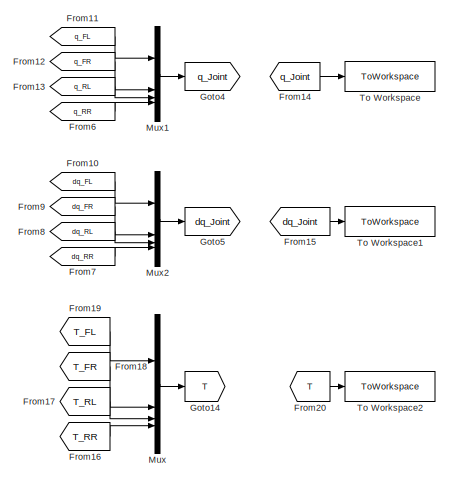
[diagram: root canvas - part 1/3, top right region]
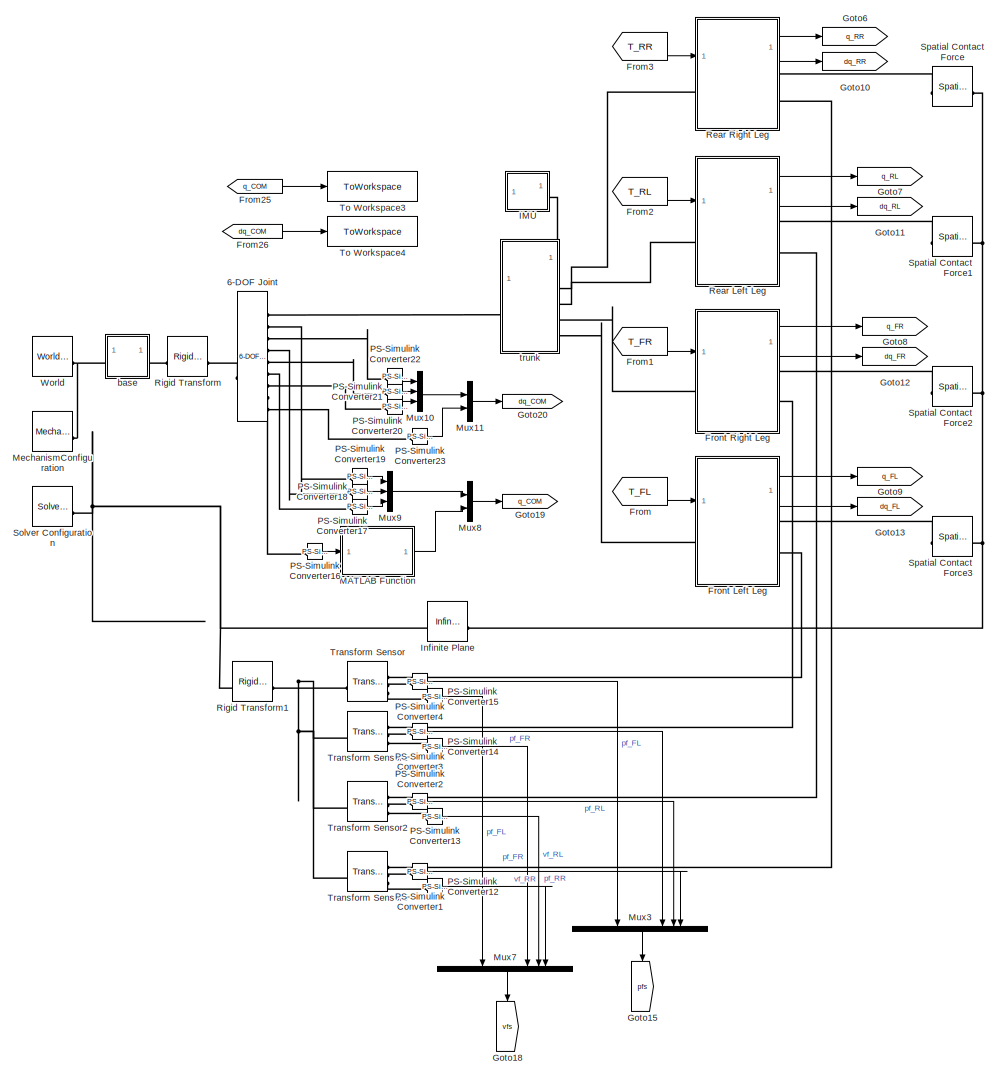
[diagram: root canvas - part 2/3, center side, full height]
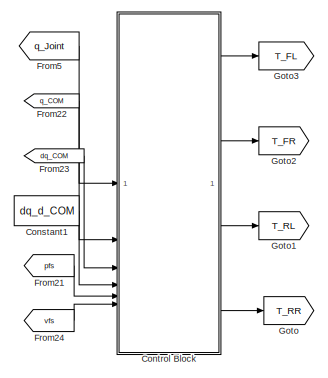
[diagram: root canvas - part 3/3, middle left region]
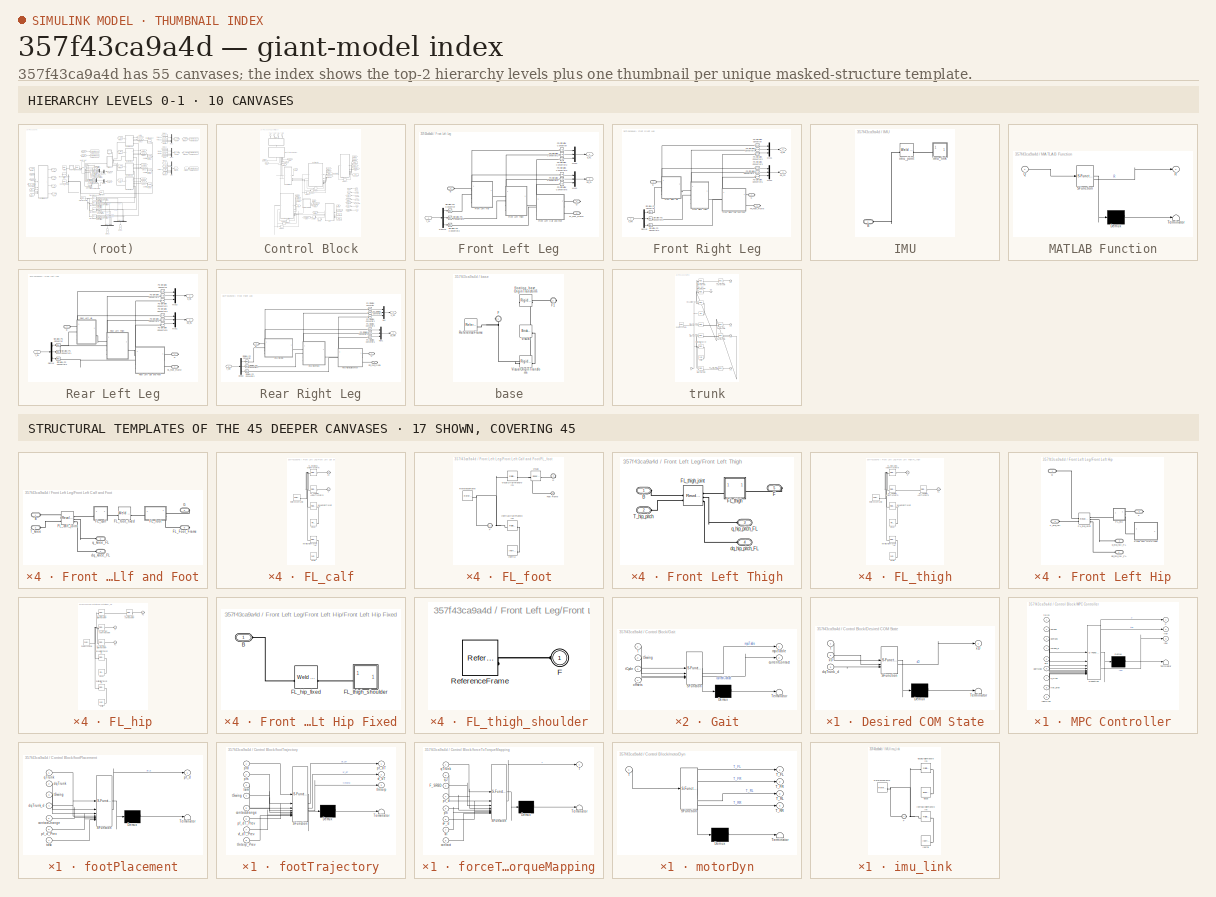
[diagram: thumbnail index - top-2 hierarchy levels (10 canvases) + 17 structural-template representatives of the remaining 45 canvases]
MODEL slx_357f43ca9a4d
KIND model
CONFIG AbsTol = auto
CONFIG EnableMultiTasking = off
CONFIG FixedStep = auto
CONFIG MaxStep = auto
CONFIG MinStep = auto
CONFIG RelTol = 1e-3
CONFIG SampleTimeConstraint = Unconstrained
CONFIG SolverName = VariableStepAuto
CONFIG StartTime = 0.0
CONFIG StopTime = 5.5
BLOCK [Reference] 6-DOF Joint  REF=sm_lib/Joints/6-DOF Joint
  SourceBlock = sm_lib/Joints/6-DOF Joint
  SourceType = 6-DOF Joint
BLOCK [Constant] Constant1
  Value = dq_d_COM
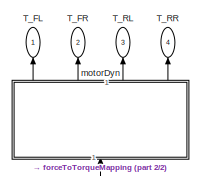
[diagram: Control Block - part 1/2, top left region]
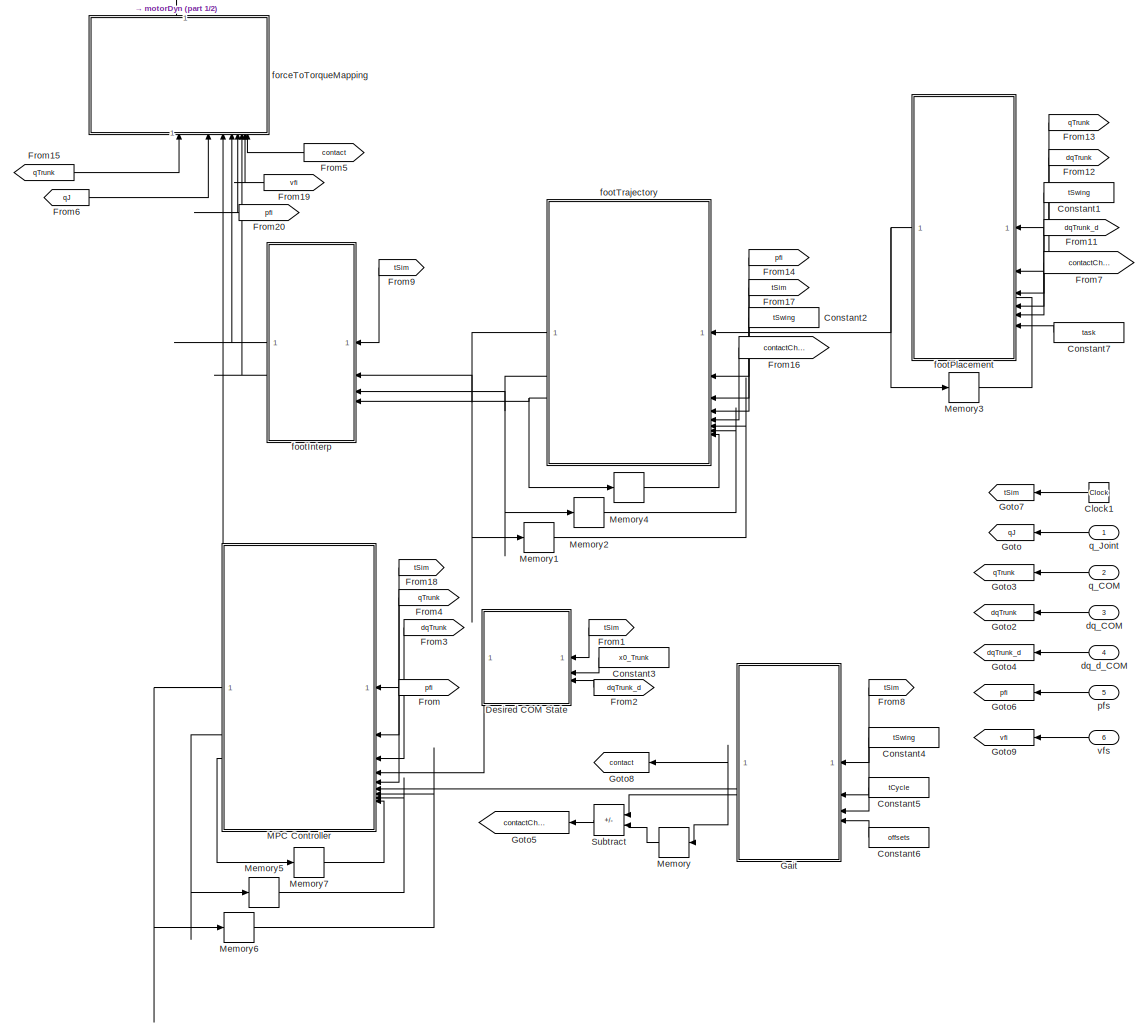
[diagram: Control Block - part 2/2, most of the canvas]
BLOCK [SubSystem] Control Block
BLOCK [Clock] Control Block/Clock1
  NameLocation = top
BLOCK [Constant] Control Block/Constant1
  NameLocation = top
  Value = tSwing
BLOCK [Constant] Control Block/Constant2
  NameLocation = top
  Value = tSwing
BLOCK [Constant] Control Block/Constant3
  NameLocation = top
  Value = x0_Trunk
BLOCK [Constant] Control Block/Constant4
  NameLocation = top
  Value = tSwing
BLOCK [Constant] Control Block/Constant5
  NameLocation = top
  Value = tCycle
BLOCK [Constant] Control Block/Constant6
  NameLocation = top
  Value = offsets
BLOCK [Constant] Control Block/Constant7
  NameLocation = top
  Value = task
BLOCK [SubSystem] Control Block/Desired COM State
  ErrorFcn = Stateflow.Translate.translate
  NameLocation = top
  PermitHierarchicalResolution = ExplicitOnly
  SFBlockType = MATLAB Function
  TreatAsAtomicUnit = on
BLOCK [Demux] Control Block/Desired COM State/ Demux 
  Outputs = 1
BLOCK [S-Function] Control Block/Desired COM State/ SFunction 
  EnableBusSupport = on
  FunctionName = sf_sfun
  Parameters = NMPC,dtMPC,tRamp
  PortCounts = [3 2]
  SFcnIsStateOwnerBlock = off
  SFunctionDeploymentMode = off
  Tag = Stateflow S-Function 10
BLOCK [Terminator] Control Block/Desired COM State/ Terminator 
BLOCK [Inport] Control Block/Desired COM State/dqTrunk_d
  Port = 3
BLOCK [Inport] Control Block/Desired COM State/t
BLOCK [Inport] Control Block/Desired COM State/x0
  Port = 2
BLOCK [Outport] Control Block/Desired COM State/xD
BLOCK [From] Control Block/From
  GotoTag = pfi
  NameLocation = top
BLOCK [From] Control Block/From1
  GotoTag = tSim
  NameLocation = top
BLOCK [From] Control Block/From11
  GotoTag = dqTrunk_d
  NameLocation = top
BLOCK [From] Control Block/From12
  GotoTag = dqTrunk
  NameLocation = top
BLOCK [From] Control Block/From13
  GotoTag = qTrunk
  NameLocation = top
BLOCK [From] Control Block/From14
  GotoTag = pfi
  NameLocation = top
BLOCK [From] Control Block/From15
  GotoTag = qTrunk
BLOCK [From] Control Block/From16
  GotoTag = contactChange
BLOCK [From] Control Block/From17
  GotoTag = tSim
  NameLocation = top
BLOCK [From] Control Block/From18
  GotoTag = tSim
  NameLocation = top
BLOCK [From] Control Block/From19
  GotoTag = vfi
BLOCK [From] Control Block/From2
  GotoTag = dqTrunk_d
  NameLocation = top
BLOCK [From] Control Block/From20
  GotoTag = pfi
BLOCK [From] Control Block/From3
  GotoTag = dqTrunk
  NameLocation = top
BLOCK [From] Control Block/From4
  GotoTag = qTrunk
  NameLocation = top
BLOCK [From] Control Block/From5
  GotoTag = contact
  NameLocation = top
BLOCK [From] Control Block/From6
  GotoTag = qJ
BLOCK [From] Control Block/From7
  GotoTag = contactChange
BLOCK [From] Control Block/From8
  GotoTag = tSim
  NameLocation = top
BLOCK [From] Control Block/From9
  GotoTag = tSim
  NameLocation = top
BLOCK [SubSystem] Control Block/Gait
  ErrorFcn = Stateflow.Translate.translate
  NameLocation = top
  PermitHierarchicalResolution = ExplicitOnly
  SFBlockType = MATLAB Function
  TreatAsAtomicUnit = on
BLOCK [Demux] Control Block/Gait/ Demux 
  Outputs = 1
BLOCK [S-Function] Control Block/Gait/ SFunction 
  EnableBusSupport = on
  FunctionName = sf_sfun
  Parameters = NMPC,dtMPC
  PortCounts = [4 3]
  SFcnIsStateOwnerBlock = off
  SFunctionDeploymentMode = off
  Tag = Stateflow S-Function 11
BLOCK [Terminator] Control Block/Gait/ Terminator 
BLOCK [Outport] Control Block/Gait/currentContact
  Port = 2
BLOCK [Outport] Control Block/Gait/mpcTable
BLOCK [Inport] Control Block/Gait/offsets
  Port = 4
BLOCK [Inport] Control Block/Gait/t
BLOCK [Inport] Control Block/Gait/tCycle
  Port = 3
BLOCK [Inport] Control Block/Gait/tSwing
  Port = 2
BLOCK [Goto] Control Block/Goto
  GotoTag = qJ
  NameLocation = top
BLOCK [Goto] Control Block/Goto2
  GotoTag = dqTrunk
  NameLocation = top
BLOCK [Goto] Control Block/Goto3
  GotoTag = qTrunk
  NameLocation = top
BLOCK [Goto] Control Block/Goto4
  GotoTag = dqTrunk_d
  NameLocation = top
BLOCK [Goto] Control Block/Goto5
  GotoTag = contactChange
  NameLocation = top
BLOCK [Goto] Control Block/Goto6
  GotoTag = pfi
  NameLocation = top
BLOCK [Goto] Control Block/Goto7
  GotoTag = tSim
  NameLocation = top
BLOCK [Goto] Control Block/Goto8
  GotoTag = contact
  NameLocation = top
BLOCK [Goto] Control Block/Goto9
  GotoTag = vfi
  NameLocation = top
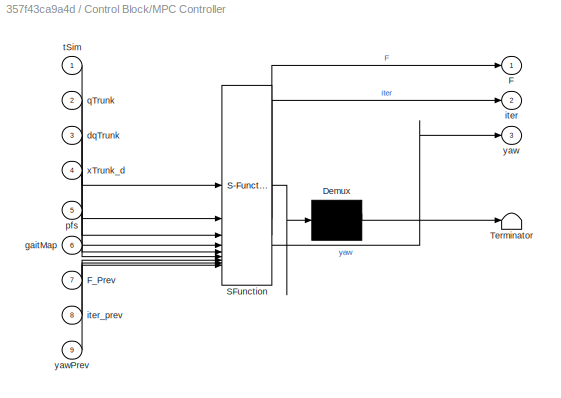
BLOCK [SubSystem] Control Block/MPC Controller
  ErrorFcn = Stateflow.Translate.translate
  NameLocation = top
  PermitHierarchicalResolution = ExplicitOnly
  SFBlockType = MATLAB Function
  TreatAsAtomicUnit = on
BLOCK [Demux] Control Block/MPC Controller/ Demux 
  Outputs = 1
BLOCK [S-Function] Control Block/MPC Controller/ SFunction 
  EnableBusSupport = on
  FunctionName = sf_sfun
  Parameters = NMPC,Qmpc,Rmpc,dtMPC
  PortCounts = [9 4]
  SFcnIsStateOwnerBlock = off
  SFunctionDeploymentMode = off
  Tag = Stateflow S-Function 3
BLOCK [Terminator] Control Block/MPC Controller/ Terminator 
BLOCK [Outport] Control Block/MPC Controller/F
BLOCK [Inport] Control Block/MPC Controller/F_Prev
  Port = 7
BLOCK [Inport] Control Block/MPC Controller/dqTrunk
  Port = 3
BLOCK [Inport] Control Block/MPC Controller/gaitMap
  Port = 6
BLOCK [Outport] Control Block/MPC Controller/iter
  Port = 2
BLOCK [Inport] Control Block/MPC Controller/iter_prev
  Port = 8
BLOCK [Inport] Control Block/MPC Controller/pfs
  Port = 5
BLOCK [Inport] Control Block/MPC Controller/qTrunk
  Port = 2
BLOCK [Inport] Control Block/MPC Controller/tSim
BLOCK [Inport] Control Block/MPC Controller/xTrunk_d
  Port = 4
BLOCK [Outport] Control Block/MPC Controller/yaw
  Port = 3
BLOCK [Inport] Control Block/MPC Controller/yawPrev
  Port = 9
BLOCK [Memory] Control Block/Memory
  InitialCondition = [1;1;1;1]
  NameLocation = top
BLOCK [Memory] Control Block/Memory1
  InitialCondition = zeros(100,12)
BLOCK [Memory] Control Block/Memory2
  InitialCondition = zeros(100,12)
BLOCK [Memory] Control Block/Memory3
  InitialCondition = zeros(12,1)
BLOCK [Memory] Control Block/Memory4
  InitialCondition = repmat(linspace(0,tCycle,100)',[1,4])
BLOCK [Memory] Control Block/Memory5
  InitialCondition = -1
BLOCK [Memory] Control Block/Memory6
  InitialCondition = ones(12,1)*0.0001
BLOCK [Memory] Control Block/Memory7
BLOCK [Sum] Control Block/Subtract
  IconShape = rectangular
  Inputs = +-
  NameLocation = top
BLOCK [Outport] Control Block/T_FL
  NameLocation = right
BLOCK [Outport] Control Block/T_FR
  NameLocation = right
  Port = 2
BLOCK [Outport] Control Block/T_RL
  NameLocation = right
  Port = 3
BLOCK [Outport] Control Block/T_RR
  NameLocation = right
  Port = 4
BLOCK [Inport] Control Block/dq_COM
  NameLocation = top
  Port = 3
BLOCK [Inport] Control Block/dq_d_COM
  NameLocation = top
  Port = 4
BLOCK [SubSystem] Control Block/footInterp
  ErrorFcn = Stateflow.Translate.translate
  NameLocation = top
  PermitHierarchicalResolution = ExplicitOnly
  SFBlockType = MATLAB Function
  TreatAsAtomicUnit = on
BLOCK [Demux] Control Block/footInterp/ Demux 
  Outputs = 1
BLOCK [S-Function] Control Block/footInterp/ SFunction 
  EnableBusSupport = on
  FunctionName = sf_sfun
  PortCounts = [4 3]
  SFcnIsStateOwnerBlock = off
  SFunctionDeploymentMode = off
  Tag = Stateflow S-Function 9
BLOCK [Terminator] Control Block/footInterp/ Terminator 
BLOCK [Inport] Control Block/footInterp/pf_dT
  Port = 2
BLOCK [Outport] Control Block/footInterp/pf_dk
BLOCK [Inport] Control Block/footInterp/t
BLOCK [Inport] Control Block/footInterp/tInterp
  Port = 4
BLOCK [Inport] Control Block/footInterp/vf_dT
  Port = 3
BLOCK [Outport] Control Block/footInterp/vf_dk
  Port = 2
BLOCK [SubSystem] Control Block/footPlacement
  ErrorFcn = Stateflow.Translate.translate
  NameLocation = top
  PermitHierarchicalResolution = ExplicitOnly
  SFBlockType = MATLAB Function
  TreatAsAtomicUnit = on
BLOCK [Demux] Control Block/footPlacement/ Demux 
  Outputs = 1
BLOCK [S-Function] Control Block/footPlacement/ SFunction 
  EnableBusSupport = on
  FunctionName = sf_sfun
  Parameters = kStep
  PortCounts = [7 2]
  SFcnIsStateOwnerBlock = off
  SFunctionDeploymentMode = off
  Tag = Stateflow S-Function 5
BLOCK [Terminator] Control Block/footPlacement/ Terminator 
BLOCK [Inport] Control Block/footPlacement/contactChange
  Port = 5
BLOCK [Inport] Control Block/footPlacement/dqTrunk
  Port = 2
BLOCK [Inport] Control Block/footPlacement/dqTrunk_d
  Port = 4
BLOCK [Outport] Control Block/footPlacement/pf_d
BLOCK [Inport] Control Block/footPlacement/pf_d_Prev
  Port = 6
BLOCK [Inport] Control Block/footPlacement/qTrunk
BLOCK [Inport] Control Block/footPlacement/tSwing
  Port = 3
BLOCK [Inport] Control Block/footPlacement/task
  Port = 7
BLOCK [SubSystem] Control Block/footTrajectory
  ErrorFcn = Stateflow.Translate.translate
  NameLocation = top
  PermitHierarchicalResolution = ExplicitOnly
  SFBlockType = MATLAB Function
  TreatAsAtomicUnit = on
BLOCK [Demux] Control Block/footTrajectory/ Demux 
  Outputs = 1
BLOCK [S-Function] Control Block/footTrajectory/ SFunction 
  EnableBusSupport = on
  FunctionName = sf_sfun
  PortCounts = [8 4]
  SFcnIsStateOwnerBlock = off
  SFunctionDeploymentMode = off
  Tag = Stateflow S-Function 6
BLOCK [Terminator] Control Block/footTrajectory/ Terminator 
BLOCK [Inport] Control Block/footTrajectory/contactchange
  Port = 5
BLOCK [Outport] Control Block/footTrajectory/pf_dT
BLOCK [Inport] Control Block/footTrajectory/pf_dT_Prev
  Port = 6
BLOCK [Inport] Control Block/footTrajectory/pfd
BLOCK [Inport] Control Block/footTrajectory/pfs
  Port = 2
BLOCK [Outport] Control Block/footTrajectory/tInterp
  Port = 3
BLOCK [Inport] Control Block/footTrajectory/tInterp_Prev
  Port = 8
BLOCK [Inport] Control Block/footTrajectory/tSwing
  Port = 4
BLOCK [Inport] Control Block/footTrajectory/tsim
  Port = 3
BLOCK [Outport] Control Block/footTrajectory/vf_dT
  Port = 2
BLOCK [Inport] Control Block/footTrajectory/vf_dT_Prev
  Port = 7
BLOCK [SubSystem] Control Block/forceToTorqueMapping
  ErrorFcn = Stateflow.Translate.translate
  NameLocation = right
  PermitHierarchicalResolution = ExplicitOnly
  SFBlockType = MATLAB Function
  TreatAsAtomicUnit = on
BLOCK [Demux] Control Block/forceToTorqueMapping/ Demux 
  Outputs = 1
BLOCK [S-Function] Control Block/forceToTorqueMapping/ SFunction 
  EnableBusSupport = on
  FunctionName = sf_sfun
  Parameters = kd_swing,kp_swing
  PortCounts = [8 2]
  SFcnIsStateOwnerBlock = off
  SFunctionDeploymentMode = off
  Tag = Stateflow S-Function 8
BLOCK [Terminator] Control Block/forceToTorqueMapping/ Terminator 
BLOCK [Inport] Control Block/forceToTorqueMapping/F_SRBD
  Port = 3
BLOCK [Outport] Control Block/forceToTorqueMapping/T
BLOCK [Inport] Control Block/forceToTorqueMapping/contact
  Port = 8
BLOCK [Inport] Control Block/forceToTorqueMapping/pf_d
  Port = 4
BLOCK [Inport] Control Block/forceToTorqueMapping/pfi
  Port = 5
BLOCK [Inport] Control Block/forceToTorqueMapping/qJ
  Port = 2
BLOCK [Inport] Control Block/forceToTorqueMapping/qTrunk
BLOCK [Inport] Control Block/forceToTorqueMapping/vF_d
  Port = 6
BLOCK [Inport] Control Block/forceToTorqueMapping/vfi
  Port = 7
BLOCK [SubSystem] Control Block/motorDyn
  ErrorFcn = Stateflow.Translate.translate
  NameLocation = right
  PermitHierarchicalResolution = ExplicitOnly
  SFBlockType = MATLAB Function
  TreatAsAtomicUnit = on
BLOCK [Demux] Control Block/motorDyn/ Demux 
  Outputs = 1
BLOCK [S-Function] Control Block/motorDyn/ SFunction 
  EnableBusSupport = on
  FunctionName = sf_sfun
  PortCounts = [1 5]
  SFcnIsStateOwnerBlock = off
  SFunctionDeploymentMode = off
  Tag = Stateflow S-Function 1
BLOCK [Terminator] Control Block/motorDyn/ Terminator 
BLOCK [Inport] Control Block/motorDyn/T
BLOCK [Outport] Control Block/motorDyn/T_FL
BLOCK [Outport] Control Block/motorDyn/T_FR
  Port = 2
BLOCK [Outport] Control Block/motorDyn/T_RL
  Port = 3
BLOCK [Outport] Control Block/motorDyn/T_RR
  Port = 4
BLOCK [Inport] Control Block/pfs
  NameLocation = top
  Port = 5
BLOCK [Inport] Control Block/q_COM
  NameLocation = top
  Port = 2
BLOCK [Inport] Control Block/q_Joint
  NameLocation = top
BLOCK [Inport] Control Block/vfs
  NameLocation = top
  Port = 6
BLOCK [From] From
  GotoTag = T_FL
BLOCK [From] From1
  GotoTag = T_FR
BLOCK [From] From10
  GotoTag = dq_FL
BLOCK [From] From11
  GotoTag = q_FL
BLOCK [From] From12
  GotoTag = q_FR
BLOCK [From] From13
  GotoTag = q_RL
BLOCK [From] From14
  GotoTag = q_Joint
BLOCK [From] From15
  GotoTag = dq_Joint
BLOCK [From] From16
  GotoTag = T_RR
BLOCK [From] From17
  GotoTag = T_RL
BLOCK [From] From18
  GotoTag = T_FR
BLOCK [From] From19
  GotoTag = T_FL
BLOCK [From] From2
  GotoTag = T_RL
BLOCK [From] From20
  GotoTag = T
BLOCK [From] From21
  GotoTag = pfs
BLOCK [From] From22
  GotoTag = q_COM
BLOCK [From] From23
  GotoTag = dq_COM
BLOCK [From] From24
  GotoTag = vfs
BLOCK [From] From25
  GotoTag = q_COM
BLOCK [From] From26
  GotoTag = dq_COM
BLOCK [From] From3
  GotoTag = T_RR
BLOCK [From] From5
  GotoTag = q_Joint
BLOCK [From] From6
  GotoTag = q_RR
BLOCK [From] From7
  GotoTag = dq_RR
BLOCK [From] From8
  GotoTag = dq_RL
BLOCK [From] From9
  GotoTag = dq_FR
BLOCK [SubSystem] Front Left Leg
BLOCK [PMIOPort] Front Left Leg/B
  Side = Left
BLOCK [Demux] Front Left Leg/Demux
  Outputs = 3
BLOCK [PMIOPort] Front Left Leg/FL_Foot_Frame
  Port = 3
  Side = Right
BLOCK [SubSystem] Front Left Leg/Front Left Calf and Foot
  PortSchema = {"entries":[{"content":{"sides":[{"content":{"connectorIds":["LConn1","LConn2"]},"type":"ConnectorPlacement.EquallySpacedRectSide","uuid":"13a04993-3104-4ff0-9790-56bc88fd7271"},{"content":{"connectorIds":["RConn1","RConn2"],"side":"RIGHT"},"type":"ConnectorPlacement.EquallySpacedRectSide","uuid":"d3121ca2-0bb7-489c-ba63-99aa3bb6178a"},{"content":{"connectorIds":["LConn3","LConn4"],"side":"TOP"},"...<+280ch>  <repeated x3 — deduplicated; at blocks: Front Left Calf and Foot, Front Right Calf and Foot, Rear Left Calf and Foot>
BLOCK [PMIOPort] Front Left Leg/Front Left Calf and Foot/B
  Side = Left
BLOCK [PMIOPort] Front Left Leg/Front Left Calf and Foot/FL_Foot_Frame
  NameLocation = top
  Port = 6
  Side = Right
BLOCK [SubSystem] Front Left Leg/Front Left Calf and Foot/FL_calf
BLOCK [PMIOPort] Front Left Leg/Front Left Calf and Foot/FL_calf/F
  Side = Left
BLOCK [PMIOPort] Front Left Leg/Front Left Calf and Foot/FL_calf/F1
  Port = 2
  Side = Right
BLOCK [Reference] Front Left Leg/Front Left Calf and Foot/FL_calf/FL_calf_joint_AxisInvTransform  REF=sm_lib/Frames and
Transforms/Rigid
Transform
  SourceBlock = sm_lib/Frames and\nTransforms/Rigid\nTransform
  SourceType = Rigid\nTransform
BLOCK [Reference] Front Left Leg/Front Left Calf and Foot/FL_calf/FL_foot_fixed_OriginTransform  REF=sm_lib/Frames and
Transforms/Rigid
Transform
  SourceBlock = sm_lib/Frames and\nTransforms/Rigid\nTransform
  SourceType = Rigid\nTransform
BLOCK [Reference] Front Left Leg/Front Left Calf and Foot/FL_calf/Inertia  REF=sm_lib/Body Elements/Inertia
  SourceBlock = sm_lib/Body Elements/Inertia
  SourceType = Inertia
BLOCK [Reference] Front Left Leg/Front Left Calf and Foot/FL_calf/InertiaOriginTransform  REF=sm_lib/Frames and
Transforms/Rigid
Transform
  SourceBlock = sm_lib/Frames and\nTransforms/Rigid\nTransform
  SourceType = Rigid\nTransform
BLOCK [Reference] Front Left Leg/Front Left Calf and Foot/FL_calf/ReferenceFrame  REF=sm_lib/Frames and
Transforms/Reference
Frame
  SourceBlock = sm_lib/Frames and\nTransforms/Reference\nFrame
  SourceType = Reference\nFrame
BLOCK [Reference] Front Left Leg/Front Left Calf and Foot/FL_calf/Visual  REF=sm_lib/Body Elements/File Solid
  SourceBlock = sm_lib/Body Elements/File Solid
  SourceType = File Solid
BLOCK [Reference] Front Left Leg/Front Left Calf and Foot/FL_calf/VisualOriginTransform  REF=sm_lib/Frames and
Transforms/Rigid
Transform
  SourceBlock = sm_lib/Frames and\nTransforms/Rigid\nTransform
  SourceType = Rigid\nTransform
BLOCK [Reference] Front Left Leg/Front Left Calf and Foot/FL_calf_joint  REF=sm_lib/Joints/Revolute Joint
  SourceBlock = sm_lib/Joints/Revolute Joint
  SourceType = Revolute Joint
BLOCK [SubSystem] Front Left Leg/Front Left Calf and Foot/FL_foot
BLOCK [PMIOPort] Front Left Leg/Front Left Calf and Foot/FL_foot/F
  Side = Left
BLOCK [PMIOPort] Front Left Leg/Front Left Calf and Foot/FL_foot/Foot Frame
  NameLocation = top
  Port = 3
  Side = Right
BLOCK [PMIOPort] Front Left Leg/Front Left Calf and Foot/FL_foot/G
  NameLocation = top
  Port = 2
  Side = Right
BLOCK [Reference] Front Left Leg/Front Left Calf and Foot/FL_foot/Inertia  REF=sm_lib/Body Elements/Inertia
  SourceBlock = sm_lib/Body Elements/Inertia
  SourceType = Inertia
BLOCK [Reference] Front Left Leg/Front Left Calf and Foot/FL_foot/InertiaOriginTransform  REF=sm_lib/Frames and
Transforms/Rigid
Transform
  SourceBlock = sm_lib/Frames and\nTransforms/Rigid\nTransform
  SourceType = Rigid\nTransform
BLOCK [Reference] Front Left Leg/Front Left Calf and Foot/FL_foot/ReferenceFrame  REF=sm_lib/Frames and
Transforms/Reference
Frame
  SourceBlock = sm_lib/Frames and\nTransforms/Reference\nFrame
  SourceType = Reference\nFrame
BLOCK [Reference] Front Left Leg/Front Left Calf and Foot/FL_foot/Visual  REF=sm_lib/Body Elements/Spherical Solid
  NameLocation = top
  SourceBlock = sm_lib/Body Elements/Spherical Solid
  SourceType = Spherical Solid
BLOCK [Reference] Front Left Leg/Front Left Calf and Foot/FL_foot/VisualOriginTransform  REF=sm_lib/Frames and
Transforms/Rigid
Transform
  SourceBlock = sm_lib/Frames and\nTransforms/Rigid\nTransform
  SourceType = Rigid\nTransform
BLOCK [Reference] Front Left Leg/Front Left Calf and Foot/FL_foot_fixed  REF=sm_lib/Joints/Weld Joint
  SourceBlock = sm_lib/Joints/Weld Joint
  SourceType = Weld Joint
BLOCK [PMIOPort] Front Left Leg/Front Left Calf and Foot/G
  NameLocation = top
  Port = 5
  Side = Right
BLOCK [PMIOPort] Front Left Leg/Front Left Calf and Foot/T_knee
  Port = 2
  Side = Left
BLOCK [PMIOPort] Front Left Leg/Front Left Calf and Foot/dq_knee_FL
  Port = 4
  Side = Left
BLOCK [PMIOPort] Front Left Leg/Front Left Calf and Foot/q_knee_FL
  Port = 3
  Side = Left
BLOCK [SubSystem] Front Left Leg/Front Left Hip
  PortSchema = {"entries":[{"content":{"sides":[{"content":{"connectorIds":["LConn1","LConn2"]},"type":"ConnectorPlacement.EquallySpacedRectSide","uuid":"13a04993-3104-4ff0-9790-56bc88fd7271"},{"content":{"connectorIds":["RConn1"],"side":"RIGHT"},"type":"ConnectorPlacement.EquallySpacedRectSide","uuid":"d3121ca2-0bb7-489c-ba63-99aa3bb6178a"},{"content":{"connectorIds":["LConn3","LConn4"],"side":"TOP"},"type":"Co...<+271ch>  <repeated x6 — deduplicated; at blocks: Front Left Hip, Front Left Thigh, Front Right Hip, Front Right Thigh, Rear Left Hip, Rear Left Thigh>
BLOCK [PMIOPort] Front Left Leg/Front Left Hip/B
  Side = Left
BLOCK [PMIOPort] Front Left Leg/Front Left Hip/F
  Port = 5
  Side = Right
BLOCK [SubSystem] Front Left Leg/Front Left Hip/FL_hip
BLOCK [PMIOPort] Front Left Leg/Front Left Hip/FL_hip/F
  Side = Left
BLOCK [PMIOPort] Front Left Leg/Front Left Hip/FL_hip/F1
  Port = 3
  Side = Right
BLOCK [PMIOPort] Front Left Leg/Front Left Hip/FL_hip/F2
  Port = 2
  Side = Right
BLOCK [Reference] Front Left Leg/Front Left Hip/FL_hip/FL_hip_fixed_OriginTransform  REF=sm_lib/Frames and
Transforms/Rigid
Transform
  SourceBlock = sm_lib/Frames and\nTransforms/Rigid\nTransform
  SourceType = Rigid\nTransform
BLOCK [Reference] Front Left Leg/Front Left Hip/FL_hip/FL_hip_joint_AxisInvTransform  REF=sm_lib/Frames and
Transforms/Rigid
Transform
  SourceBlock = sm_lib/Frames and\nTransforms/Rigid\nTransform
  SourceType = Rigid\nTransform
BLOCK [Reference] Front Left Leg/Front Left Hip/FL_hip/FL_thigh_joint_AxisTransform  REF=sm_lib/Frames and
Transforms/Rigid
Transform
  SourceBlock = sm_lib/Frames and\nTransforms/Rigid\nTransform
  SourceType = Rigid\nTransform
BLOCK [Reference] Front Left Leg/Front Left Hip/FL_hip/FL_thigh_joint_OriginTransform  REF=sm_lib/Frames and
Transforms/Rigid
Transform
  SourceBlock = sm_lib/Frames and\nTransforms/Rigid\nTransform
  SourceType = Rigid\nTransform
BLOCK [Reference] Front Left Leg/Front Left Hip/FL_hip/Inertia  REF=sm_lib/Body Elements/Inertia
  SourceBlock = sm_lib/Body Elements/Inertia
  SourceType = Inertia
BLOCK [Reference] Front Left Leg/Front Left Hip/FL_hip/InertiaOriginTransform  REF=sm_lib/Frames and
Transforms/Rigid
Transform
  SourceBlock = sm_lib/Frames and\nTransforms/Rigid\nTransform
  SourceType = Rigid\nTransform
BLOCK [Reference] Front Left Leg/Front Left Hip/FL_hip/ReferenceFrame  REF=sm_lib/Frames and
Transforms/Reference
Frame
  SourceBlock = sm_lib/Frames and\nTransforms/Reference\nFrame
  SourceType = Reference\nFrame
BLOCK [Reference] Front Left Leg/Front Left Hip/FL_hip/Visual  REF=sm_lib/Body Elements/File Solid
  SourceBlock = sm_lib/Body Elements/File Solid
  SourceType = File Solid
BLOCK [Reference] Front Left Leg/Front Left Hip/FL_hip/VisualOriginTransform  REF=sm_lib/Frames and
Transforms/Rigid
Transform
  SourceBlock = sm_lib/Frames and\nTransforms/Rigid\nTransform
  SourceType = Rigid\nTransform
BLOCK [Reference] Front Left Leg/Front Left Hip/FL_hip_joint  REF=sm_lib/Joints/Revolute Joint
  SourceBlock = sm_lib/Joints/Revolute Joint
  SourceType = Revolute Joint
BLOCK [SubSystem] Front Left Leg/Front Left Hip/Front Left Hip Fixed
BLOCK [PMIOPort] Front Left Leg/Front Left Hip/Front Left Hip Fixed/B
  Side = Left
BLOCK [Reference] Front Left Leg/Front Left Hip/Front Left Hip Fixed/FL_hip_fixed  REF=sm_lib/Joints/Weld Joint
  SourceBlock = sm_lib/Joints/Weld Joint
  SourceType = Weld Joint
BLOCK [SubSystem] Front Left Leg/Front Left Hip/Front Left Hip Fixed/FL_thigh_shoulder
BLOCK [PMIOPort] Front Left Leg/Front Left Hip/Front Left Hip Fixed/FL_thigh_shoulder/F
  Side = Left
BLOCK [Reference] Front Left Leg/Front Left Hip/Front Left Hip Fixed/FL_thigh_shoulder/ReferenceFrame  REF=sm_lib/Frames and
Transforms/Reference
Frame
  SourceBlock = sm_lib/Frames and\nTransforms/Reference\nFrame
  SourceType = Reference\nFrame
BLOCK [PMIOPort] Front Left Leg/Front Left Hip/T_hip_roll
  Port = 2
  Side = Left
BLOCK [PMIOPort] Front Left Leg/Front Left Hip/dq_hip_roll_FL
  Port = 4
  Side = Left
BLOCK [PMIOPort] Front Left Leg/Front Left Hip/q_hip_roll_FL
  Port = 3
  Side = Left
BLOCK [SubSystem] Front Left Leg/Front Left Thigh
BLOCK [PMIOPort] Front Left Leg/Front Left Thigh/B
  Side = Left
BLOCK [PMIOPort] Front Left Leg/Front Left Thigh/F
  Port = 5
  Side = Right
BLOCK [SubSystem] Front Left Leg/Front Left Thigh/FL_thigh
BLOCK [PMIOPort] Front Left Leg/Front Left Thigh/FL_thigh/F
  Side = Left
BLOCK [PMIOPort] Front Left Leg/Front Left Thigh/FL_thigh/F1
  Port = 2
  Side = Right
BLOCK [Reference] Front Left Leg/Front Left Thigh/FL_thigh/FL_calf_joint_AxisTransform  REF=sm_lib/Frames and
Transforms/Rigid
Transform
  SourceBlock = sm_lib/Frames and\nTransforms/Rigid\nTransform
  SourceType = Rigid\nTransform
BLOCK [Reference] Front Left Leg/Front Left Thigh/FL_thigh/FL_calf_joint_OriginTransform  REF=sm_lib/Frames and
Transforms/Rigid
Transform
  SourceBlock = sm_lib/Frames and\nTransforms/Rigid\nTransform
  SourceType = Rigid\nTransform
BLOCK [Reference] Front Left Leg/Front Left Thigh/FL_thigh/FL_thigh_joint_AxisInvTransform  REF=sm_lib/Frames and
Transforms/Rigid
Transform
  SourceBlock = sm_lib/Frames and\nTransforms/Rigid\nTransform
  SourceType = Rigid\nTransform
BLOCK [Reference] Front Left Leg/Front Left Thigh/FL_thigh/Inertia  REF=sm_lib/Body Elements/Inertia
  SourceBlock = sm_lib/Body Elements/Inertia
  SourceType = Inertia
BLOCK [Reference] Front Left Leg/Front Left Thigh/FL_thigh/InertiaOriginTransform  REF=sm_lib/Frames and
Transforms/Rigid
Transform
  SourceBlock = sm_lib/Frames and\nTransforms/Rigid\nTransform
  SourceType = Rigid\nTransform
BLOCK [Reference] Front Left Leg/Front Left Thigh/FL_thigh/ReferenceFrame  REF=sm_lib/Frames and
Transforms/Reference
Frame
  SourceBlock = sm_lib/Frames and\nTransforms/Reference\nFrame
  SourceType = Reference\nFrame
BLOCK [Reference] Front Left Leg/Front Left Thigh/FL_thigh/Visual  REF=sm_lib/Body Elements/File Solid
  SourceBlock = sm_lib/Body Elements/File Solid
  SourceType = File Solid
BLOCK [Reference] Front Left Leg/Front Left Thigh/FL_thigh/VisualOriginTransform  REF=sm_lib/Frames and
Transforms/Rigid
Transform
  SourceBlock = sm_lib/Frames and\nTransforms/Rigid\nTransform
  SourceType = Rigid\nTransform
BLOCK [Reference] Front Left Leg/Front Left Thigh/FL_thigh_joint  REF=sm_lib/Joints/Revolute Joint
  SourceBlock = sm_lib/Joints/Revolute Joint
  SourceType = Revolute Joint
BLOCK [PMIOPort] Front Left Leg/Front Left Thigh/T_hip_pitch
  Port = 2
  Side = Left
BLOCK [PMIOPort] Front Left Leg/Front Left Thigh/dq_hip_pitch_FL
  Port = 4
  Side = Left
BLOCK [PMIOPort] Front Left Leg/Front Left Thigh/q_hip_pitch_FL
  Port = 3
  Side = Left
BLOCK [PMIOPort] Front Left Leg/G
  Port = 2
  Side = Right
BLOCK [Mux] Front Left Leg/Mux1
  DisplayOption = bar
  Inputs = 3
BLOCK [Mux] Front Left Leg/Mux2
  DisplayOption = bar
  Inputs = 3
BLOCK [Reference] Front Left Leg/PS-Simulink Converter  REF=nesl_utility/PS-Simulink
Converter
  SourceBlock = nesl_utility/PS-Simulink\nConverter
  SourceType = PS-Simulink\nConverter
BLOCK [Reference] Front Left Leg/PS-Simulink Converter1  REF=nesl_utility/PS-Simulink
Converter
  SourceBlock = nesl_utility/PS-Simulink\nConverter
  SourceType = PS-Simulink\nConverter
BLOCK [Reference] Front Left Leg/PS-Simulink Converter2  REF=nesl_utility/PS-Simulink
Converter
  SourceBlock = nesl_utility/PS-Simulink\nConverter
  SourceType = PS-Simulink\nConverter
BLOCK [Reference] Front Left Leg/PS-Simulink Converter3  REF=nesl_utility/PS-Simulink
Converter
  SourceBlock = nesl_utility/PS-Simulink\nConverter
  SourceType = PS-Simulink\nConverter
BLOCK [Reference] Front Left Leg/PS-Simulink Converter4  REF=nesl_utility/PS-Simulink
Converter
  SourceBlock = nesl_utility/PS-Simulink\nConverter
  SourceType = PS-Simulink\nConverter
BLOCK [Reference] Front Left Leg/PS-Simulink Converter5  REF=nesl_utility/PS-Simulink
Converter
  SourceBlock = nesl_utility/PS-Simulink\nConverter
  SourceType = PS-Simulink\nConverter
BLOCK [Reference] Front Left Leg/Simulink-PS Converter  REF=nesl_utility/Simulink-PS
Converter
  SourceBlock = nesl_utility/Simulink-PS\nConverter
  SourceType = Simulink-PS\nConverter
BLOCK [Reference] Front Left Leg/Simulink-PS Converter1  REF=nesl_utility/Simulink-PS
Converter
  SourceBlock = nesl_utility/Simulink-PS\nConverter
  SourceType = Simulink-PS\nConverter
BLOCK [Reference] Front Left Leg/Simulink-PS Converter2  REF=nesl_utility/Simulink-PS
Converter
  SourceBlock = nesl_utility/Simulink-PS\nConverter
  SourceType = Simulink-PS\nConverter
BLOCK [Inport] Front Left Leg/T_FL
BLOCK [Outport] Front Left Leg/dq_FL
  Port = 2
BLOCK [Outport] Front Left Leg/q_FL
BLOCK [SubSystem] Front Right Leg
BLOCK [PMIOPort] Front Right Leg/B
  Side = Left
BLOCK [Demux] Front Right Leg/Demux
  Outputs = 3
BLOCK [PMIOPort] Front Right Leg/FR_Foot_Frame
  Port = 3
  Side = Right
BLOCK [SubSystem] Front Right Leg/Front Right Calf and Foot
BLOCK [PMIOPort] Front Right Leg/Front Right Calf and Foot/F
  Side = Left
BLOCK [PMIOPort] Front Right Leg/Front Right Calf and Foot/FR_Foot_Frame
  NameLocation = top
  Port = 6
  Side = Right
BLOCK [SubSystem] Front Right Leg/Front Right Calf and Foot/FR_calf
BLOCK [PMIOPort] Front Right Leg/Front Right Calf and Foot/FR_calf/F
  Side = Left
BLOCK [PMIOPort] Front Right Leg/Front Right Calf and Foot/FR_calf/F1
  Port = 2
  Side = Right
BLOCK [Reference] Front Right Leg/Front Right Calf and Foot/FR_calf/FR_calf_joint_AxisInvTransform  REF=sm_lib/Frames and
Transforms/Rigid
Transform
  SourceBlock = sm_lib/Frames and\nTransforms/Rigid\nTransform
  SourceType = Rigid\nTransform
BLOCK [Reference] Front Right Leg/Front Right Calf and Foot/FR_calf/FR_foot_fixed_OriginTransform  REF=sm_lib/Frames and
Transforms/Rigid
Transform
  SourceBlock = sm_lib/Frames and\nTransforms/Rigid\nTransform
  SourceType = Rigid\nTransform
BLOCK [Reference] Front Right Leg/Front Right Calf and Foot/FR_calf/Inertia  REF=sm_lib/Body Elements/Inertia
  SourceBlock = sm_lib/Body Elements/Inertia
  SourceType = Inertia
BLOCK [Reference] Front Right Leg/Front Right Calf and Foot/FR_calf/InertiaOriginTransform  REF=sm_lib/Frames and
Transforms/Rigid
Transform
  SourceBlock = sm_lib/Frames and\nTransforms/Rigid\nTransform
  SourceType = Rigid\nTransform
BLOCK [Reference] Front Right Leg/Front Right Calf and Foot/FR_calf/ReferenceFrame  REF=sm_lib/Frames and
Transforms/Reference
Frame
  SourceBlock = sm_lib/Frames and\nTransforms/Reference\nFrame
  SourceType = Reference\nFrame
BLOCK [Reference] Front Right Leg/Front Right Calf and Foot/FR_calf/Visual  REF=sm_lib/Body Elements/File Solid
  SourceBlock = sm_lib/Body Elements/File Solid
  SourceType = File Solid
BLOCK [Reference] Front Right Leg/Front Right Calf and Foot/FR_calf/VisualOriginTransform  REF=sm_lib/Frames and
Transforms/Rigid
Transform
  SourceBlock = sm_lib/Frames and\nTransforms/Rigid\nTransform
  SourceType = Rigid\nTransform
BLOCK [Reference] Front Right Leg/Front Right Calf and Foot/FR_calf_joint  REF=sm_lib/Joints/Revolute Joint
  SourceBlock = sm_lib/Joints/Revolute Joint
  SourceType = Revolute Joint
BLOCK [SubSystem] Front Right Leg/Front Right Calf and Foot/FR_foot
BLOCK [PMIOPort] Front Right Leg/Front Right Calf and Foot/FR_foot/F
  Side = Left
BLOCK [PMIOPort] Front Right Leg/Front Right Calf and Foot/FR_foot/Foot Frame
  NameLocation = top
  Port = 3
  Side = Right
BLOCK [PMIOPort] Front Right Leg/Front Right Calf and Foot/FR_foot/G
  NameLocation = top
  Port = 2
  Side = Right
BLOCK [Reference] Front Right Leg/Front Right Calf and Foot/FR_foot/Inertia  REF=sm_lib/Body Elements/Inertia
  SourceBlock = sm_lib/Body Elements/Inertia
  SourceType = Inertia
BLOCK [Reference] Front Right Leg/Front Right Calf and Foot/FR_foot/InertiaOriginTransform  REF=sm_lib/Frames and
Transforms/Rigid
Transform
  SourceBlock = sm_lib/Frames and\nTransforms/Rigid\nTransform
  SourceType = Rigid\nTransform
BLOCK [Reference] Front Right Leg/Front Right Calf and Foot/FR_foot/ReferenceFrame  REF=sm_lib/Frames and
Transforms/Reference
Frame
  SourceBlock = sm_lib/Frames and\nTransforms/Reference\nFrame
  SourceType = Reference\nFrame
BLOCK [Reference] Front Right Leg/Front Right Calf and Foot/FR_foot/Visual  REF=sm_lib/Body Elements/Spherical Solid
  NameLocation = top
  SourceBlock = sm_lib/Body Elements/Spherical Solid
  SourceType = Spherical Solid
BLOCK [Reference] Front Right Leg/Front Right Calf and Foot/FR_foot/VisualOriginTransform  REF=sm_lib/Frames and
Transforms/Rigid
Transform
  SourceBlock = sm_lib/Frames and\nTransforms/Rigid\nTransform
  SourceType = Rigid\nTransform
BLOCK [Reference] Front Right Leg/Front Right Calf and Foot/FR_foot_fixed  REF=sm_lib/Joints/Weld Joint
  SourceBlock = sm_lib/Joints/Weld Joint
  SourceType = Weld Joint
BLOCK [PMIOPort] Front Right Leg/Front Right Calf and Foot/G
  NameLocation = top
  Port = 5
  Side = Right
BLOCK [PMIOPort] Front Right Leg/Front Right Calf and Foot/T_knee
  Port = 2
  Side = Left
BLOCK [PMIOPort] Front Right Leg/Front Right Calf and Foot/dq_knee_FR
  Port = 4
  Side = Left
BLOCK [PMIOPort] Front Right Leg/Front Right Calf and Foot/q_knee_FR
  Port = 3
  Side = Left
BLOCK [SubSystem] Front Right Leg/Front Right Hip
BLOCK [PMIOPort] Front Right Leg/Front Right Hip/B
  Side = Left
BLOCK [PMIOPort] Front Right Leg/Front Right Hip/F
  Port = 5
  Side = Right
BLOCK [SubSystem] Front Right Leg/Front Right Hip/FR_hip
BLOCK [PMIOPort] Front Right Leg/Front Right Hip/FR_hip/F
  Side = Left
BLOCK [PMIOPort] Front Right Leg/Front Right Hip/FR_hip/F1
  Port = 3
  Side = Right
BLOCK [PMIOPort] Front Right Leg/Front Right Hip/FR_hip/F2
  Port = 2
  Side = Right
BLOCK [Reference] Front Right Leg/Front Right Hip/FR_hip/FR_hip_fixed_OriginTransform  REF=sm_lib/Frames and
Transforms/Rigid
Transform
  SourceBlock = sm_lib/Frames and\nTransforms/Rigid\nTransform
  SourceType = Rigid\nTransform
BLOCK [Reference] Front Right Leg/Front Right Hip/FR_hip/FR_hip_joint_AxisInvTransform  REF=sm_lib/Frames and
Transforms/Rigid
Transform
  SourceBlock = sm_lib/Frames and\nTransforms/Rigid\nTransform
  SourceType = Rigid\nTransform
BLOCK [Reference] Front Right Leg/Front Right Hip/FR_hip/FR_thigh_joint_AxisTransform  REF=sm_lib/Frames and
Transforms/Rigid
Transform
  SourceBlock = sm_lib/Frames and\nTransforms/Rigid\nTransform
  SourceType = Rigid\nTransform
BLOCK [Reference] Front Right Leg/Front Right Hip/FR_hip/FR_thigh_joint_OriginTransform  REF=sm_lib/Frames and
Transforms/Rigid
Transform
  SourceBlock = sm_lib/Frames and\nTransforms/Rigid\nTransform
  SourceType = Rigid\nTransform
BLOCK [Reference] Front Right Leg/Front Right Hip/FR_hip/Inertia  REF=sm_lib/Body Elements/Inertia
  SourceBlock = sm_lib/Body Elements/Inertia
  SourceType = Inertia
BLOCK [Reference] Front Right Leg/Front Right Hip/FR_hip/InertiaOriginTransform  REF=sm_lib/Frames and
Transforms/Rigid
Transform
  SourceBlock = sm_lib/Frames and\nTransforms/Rigid\nTransform
  SourceType = Rigid\nTransform
BLOCK [Reference] Front Right Leg/Front Right Hip/FR_hip/ReferenceFrame  REF=sm_lib/Frames and
Transforms/Reference
Frame
  SourceBlock = sm_lib/Frames and\nTransforms/Reference\nFrame
  SourceType = Reference\nFrame
BLOCK [Reference] Front Right Leg/Front Right Hip/FR_hip/Visual  REF=sm_lib/Body Elements/File Solid
  SourceBlock = sm_lib/Body Elements/File Solid
  SourceType = File Solid
BLOCK [Reference] Front Right Leg/Front Right Hip/FR_hip/VisualOriginTransform  REF=sm_lib/Frames and
Transforms/Rigid
Transform
  SourceBlock = sm_lib/Frames and\nTransforms/Rigid\nTransform
  SourceType = Rigid\nTransform
BLOCK [Reference] Front Right Leg/Front Right Hip/FR_hip_joint  REF=sm_lib/Joints/Revolute Joint
  SourceBlock = sm_lib/Joints/Revolute Joint
  SourceType = Revolute Joint
BLOCK [SubSystem] Front Right Leg/Front Right Hip/Front Right Hip Fixed
BLOCK [PMIOPort] Front Right Leg/Front Right Hip/Front Right Hip Fixed/Conn1
  Side = Left
BLOCK [Reference] Front Right Leg/Front Right Hip/Front Right Hip Fixed/FR_hip_fixed  REF=sm_lib/Joints/Weld Joint
  SourceBlock = sm_lib/Joints/Weld Joint
  SourceType = Weld Joint
BLOCK [SubSystem] Front Right Leg/Front Right Hip/Front Right Hip Fixed/FR_thigh_shoulder
BLOCK [PMIOPort] Front Right Leg/Front Right Hip/Front Right Hip Fixed/FR_thigh_shoulder/F
  Side = Left
BLOCK [Reference] Front Right Leg/Front Right Hip/Front Right Hip Fixed/FR_thigh_shoulder/ReferenceFrame  REF=sm_lib/Frames and
Transforms/Reference
Frame
  SourceBlock = sm_lib/Frames and\nTransforms/Reference\nFrame
  SourceType = Reference\nFrame
BLOCK [PMIOPort] Front Right Leg/Front Right Hip/T_hip_roll
  Port = 2
  Side = Left
BLOCK [PMIOPort] Front Right Leg/Front Right Hip/dq_hip_roll_FR
  Port = 4
  Side = Left
BLOCK [PMIOPort] Front Right Leg/Front Right Hip/q_hip_roll_FR
  Port = 3
  Side = Left
BLOCK [SubSystem] Front Right Leg/Front Right Thigh
BLOCK [PMIOPort] Front Right Leg/Front Right Thigh/B
  Side = Left
BLOCK [PMIOPort] Front Right Leg/Front Right Thigh/F
  Port = 5
  Side = Right
BLOCK [SubSystem] Front Right Leg/Front Right Thigh/FR_thigh
BLOCK [PMIOPort] Front Right Leg/Front Right Thigh/FR_thigh/F
  Side = Left
BLOCK [PMIOPort] Front Right Leg/Front Right Thigh/FR_thigh/F1
  Port = 2
  Side = Right
BLOCK [Reference] Front Right Leg/Front Right Thigh/FR_thigh/FR_calf_joint_AxisTransform  REF=sm_lib/Frames and
Transforms/Rigid
Transform
  SourceBlock = sm_lib/Frames and\nTransforms/Rigid\nTransform
  SourceType = Rigid\nTransform
BLOCK [Reference] Front Right Leg/Front Right Thigh/FR_thigh/FR_calf_joint_OriginTransform  REF=sm_lib/Frames and
Transforms/Rigid
Transform
  SourceBlock = sm_lib/Frames and\nTransforms/Rigid\nTransform
  SourceType = Rigid\nTransform
BLOCK [Reference] Front Right Leg/Front Right Thigh/FR_thigh/FR_thigh_joint_AxisInvTransform  REF=sm_lib/Frames and
Transforms/Rigid
Transform
  SourceBlock = sm_lib/Frames and\nTransforms/Rigid\nTransform
  SourceType = Rigid\nTransform
BLOCK [Reference] Front Right Leg/Front Right Thigh/FR_thigh/Inertia  REF=sm_lib/Body Elements/Inertia
  SourceBlock = sm_lib/Body Elements/Inertia
  SourceType = Inertia
BLOCK [Reference] Front Right Leg/Front Right Thigh/FR_thigh/InertiaOriginTransform  REF=sm_lib/Frames and
Transforms/Rigid
Transform
  SourceBlock = sm_lib/Frames and\nTransforms/Rigid\nTransform
  SourceType = Rigid\nTransform
BLOCK [Reference] Front Right Leg/Front Right Thigh/FR_thigh/ReferenceFrame  REF=sm_lib/Frames and
Transforms/Reference
Frame
  SourceBlock = sm_lib/Frames and\nTransforms/Reference\nFrame
  SourceType = Reference\nFrame
BLOCK [Reference] Front Right Leg/Front Right Thigh/FR_thigh/Visual  REF=sm_lib/Body Elements/File Solid
  SourceBlock = sm_lib/Body Elements/File Solid
  SourceType = File Solid
BLOCK [Reference] Front Right Leg/Front Right Thigh/FR_thigh/VisualOriginTransform  REF=sm_lib/Frames and
Transforms/Rigid
Transform
  SourceBlock = sm_lib/Frames and\nTransforms/Rigid\nTransform
  SourceType = Rigid\nTransform
BLOCK [Reference] Front Right Leg/Front Right Thigh/FR_thigh_joint  REF=sm_lib/Joints/Revolute Joint
  SourceBlock = sm_lib/Joints/Revolute Joint
  SourceType = Revolute Joint
BLOCK [PMIOPort] Front Right Leg/Front Right Thigh/T_hip_pitch
  Port = 2
  Side = Left
BLOCK [PMIOPort] Front Right Leg/Front Right Thigh/dq_hip_pitch_FR
  Port = 4
  Side = Left
BLOCK [PMIOPort] Front Right Leg/Front Right Thigh/q_hip_pitch_FR
  Port = 3
  Side = Left
BLOCK [PMIOPort] Front Right Leg/G
  Port = 2
  Side = Right
BLOCK [Mux] Front Right Leg/Mux1
  DisplayOption = bar
  Inputs = 3
BLOCK [Mux] Front Right Leg/Mux2
  DisplayOption = bar
  Inputs = 3
BLOCK [Reference] Front Right Leg/PS-Simulink Converter  REF=nesl_utility/PS-Simulink
Converter
  SourceBlock = nesl_utility/PS-Simulink\nConverter
  SourceType = PS-Simulink\nConverter
BLOCK [Reference] Front Right Leg/PS-Simulink Converter1  REF=nesl_utility/PS-Simulink
Converter
  SourceBlock = nesl_utility/PS-Simulink\nConverter
  SourceType = PS-Simulink\nConverter
BLOCK [Reference] Front Right Leg/PS-Simulink Converter2  REF=nesl_utility/PS-Simulink
Converter
  SourceBlock = nesl_utility/PS-Simulink\nConverter
  SourceType = PS-Simulink\nConverter
BLOCK [Reference] Front Right Leg/PS-Simulink Converter3  REF=nesl_utility/PS-Simulink
Converter
  SourceBlock = nesl_utility/PS-Simulink\nConverter
  SourceType = PS-Simulink\nConverter
BLOCK [Reference] Front Right Leg/PS-Simulink Converter4  REF=nesl_utility/PS-Simulink
Converter
  SourceBlock = nesl_utility/PS-Simulink\nConverter
  SourceType = PS-Simulink\nConverter
BLOCK [Reference] Front Right Leg/PS-Simulink Converter5  REF=nesl_utility/PS-Simulink
Converter
  SourceBlock = nesl_utility/PS-Simulink\nConverter
  SourceType = PS-Simulink\nConverter
BLOCK [Reference] Front Right Leg/Simulink-PS Converter  REF=nesl_utility/Simulink-PS
Converter
  SourceBlock = nesl_utility/Simulink-PS\nConverter
  SourceType = Simulink-PS\nConverter
BLOCK [Reference] Front Right Leg/Simulink-PS Converter1  REF=nesl_utility/Simulink-PS
Converter
  SourceBlock = nesl_utility/Simulink-PS\nConverter
  SourceType = Simulink-PS\nConverter
BLOCK [Reference] Front Right Leg/Simulink-PS Converter2  REF=nesl_utility/Simulink-PS
Converter
  SourceBlock = nesl_utility/Simulink-PS\nConverter
  SourceType = Simulink-PS\nConverter
BLOCK [Inport] Front Right Leg/T_FR
BLOCK [Outport] Front Right Leg/dq_FR
  Port = 2
BLOCK [Outport] Front Right Leg/q_FR
BLOCK [Goto] Goto
  GotoTag = T_RR
BLOCK [Goto] Goto1
  GotoTag = T_RL
BLOCK [Goto] Goto10
  GotoTag = dq_RR
BLOCK [Goto] Goto11
  GotoTag = dq_RL
BLOCK [Goto] Goto12
  GotoTag = dq_FR
BLOCK [Goto] Goto13
  GotoTag = dq_FL
BLOCK [Goto] Goto14
  GotoTag = T
BLOCK [Goto] Goto15
  GotoTag = pfs
  NameLocation = left
BLOCK [Goto] Goto18
  GotoTag = vfs
  NameLocation = left
BLOCK [Goto] Goto19
  GotoTag = q_COM
BLOCK [Goto] Goto2
  GotoTag = T_FR
BLOCK [Goto] Goto20
  GotoTag = dq_COM
BLOCK [Goto] Goto3
  GotoTag = T_FL
BLOCK [Goto] Goto4
  GotoTag = q_Joint
BLOCK [Goto] Goto5
  GotoTag = dq_Joint
BLOCK [Goto] Goto6
  GotoTag = q_RR
BLOCK [Goto] Goto7
  GotoTag = q_RL
BLOCK [Goto] Goto8
  GotoTag = q_FR
BLOCK [Goto] Goto9
  GotoTag = q_FL
BLOCK [SubSystem] IMU
  NameLocation = top
BLOCK [PMIOPort] IMU/B
  Side = Left
BLOCK [Reference] IMU/imu_joint  REF=sm_lib/Joints/Weld Joint
  SourceBlock = sm_lib/Joints/Weld Joint
  SourceType = Weld Joint
BLOCK [SubSystem] IMU/imu_link
BLOCK [PMIOPort] IMU/imu_link/F
  Side = Left
BLOCK [Reference] IMU/imu_link/Inertia  REF=sm_lib/Body Elements/Inertia
  SourceBlock = sm_lib/Body Elements/Inertia
  SourceType = Inertia
BLOCK [Reference] IMU/imu_link/InertiaOriginTransform  REF=sm_lib/Frames and
Transforms/Rigid
Transform
  SourceBlock = sm_lib/Frames and\nTransforms/Rigid\nTransform
  SourceType = Rigid\nTransform
BLOCK [Reference] IMU/imu_link/ReferenceFrame  REF=sm_lib/Frames and
Transforms/Reference
Frame
  SourceBlock = sm_lib/Frames and\nTransforms/Reference\nFrame
  SourceType = Reference\nFrame
BLOCK [Reference] IMU/imu_link/Visual  REF=sm_lib/Body Elements/Brick Solid
  SourceBlock = sm_lib/Body Elements/Brick Solid
  SourceType = Brick Solid
BLOCK [Reference] IMU/imu_link/VisualOriginTransform  REF=sm_lib/Frames and
Transforms/Rigid
Transform
  SourceBlock = sm_lib/Frames and\nTransforms/Rigid\nTransform
  SourceType = Rigid\nTransform
BLOCK [Reference] Infinite Plane  REF=sm_lib/Curves and Surfaces/Infinite Plane
  SourceBlock = sm_lib/Curves and Surfaces/Infinite Plane
  SourceType = Infinite Plane
BLOCK [SubSystem] MATLAB Function
  ErrorFcn = Stateflow.Translate.translate
  PermitHierarchicalResolution = ExplicitOnly
  SFBlockType = MATLAB Function
  TreatAsAtomicUnit = on
BLOCK [Demux] MATLAB Function/ Demux 
  Outputs = 1
BLOCK [S-Function] MATLAB Function/ SFunction 
  EnableBusSupport = on
  FunctionName = sf_sfun
  PortCounts = [1 2]
  SFcnIsStateOwnerBlock = off
  SFunctionDeploymentMode = off
  Tag = Stateflow S-Function 7
BLOCK [Terminator] MATLAB Function/ Terminator 
BLOCK [Inport] MATLAB Function/Q
BLOCK [Outport] MATLAB Function/R
BLOCK [Reference] MechanismConfiguration  REF=sm_lib/Utilities/Mechanism
Configuration
  SourceBlock = sm_lib/Utilities/Mechanism\nConfiguration
  SourceType = Mechanism\nConfiguration
BLOCK [Mux] Mux
  DisplayOption = bar
BLOCK [Mux] Mux1
  DisplayOption = bar
BLOCK [Mux] Mux10
  DisplayOption = bar
  Inputs = 3
BLOCK [Mux] Mux11
  DisplayOption = bar
  Inputs = 2
BLOCK [Mux] Mux2
  DisplayOption = bar
BLOCK [Mux] Mux3
  DisplayOption = bar
  NameLocation = left
BLOCK [Mux] Mux7
  DisplayOption = bar
  NameLocation = left
BLOCK [Mux] Mux8
  DisplayOption = bar
  Inputs = 2
BLOCK [Mux] Mux9
  DisplayOption = bar
  Inputs = 3
BLOCK [Reference] PS-Simulink Converter1  REF=nesl_utility/PS-Simulink
Converter
  SourceBlock = nesl_utility/PS-Simulink\nConverter
  SourceType = PS-Simulink\nConverter
BLOCK [Reference] PS-Simulink Converter12  REF=nesl_utility/PS-Simulink
Converter
  SourceBlock = nesl_utility/PS-Simulink\nConverter
  SourceType = PS-Simulink\nConverter
BLOCK [Reference] PS-Simulink Converter13  REF=nesl_utility/PS-Simulink
Converter
  SourceBlock = nesl_utility/PS-Simulink\nConverter
  SourceType = PS-Simulink\nConverter
BLOCK [Reference] PS-Simulink Converter14  REF=nesl_utility/PS-Simulink
Converter
  SourceBlock = nesl_utility/PS-Simulink\nConverter
  SourceType = PS-Simulink\nConverter
BLOCK [Reference] PS-Simulink Converter15  REF=nesl_utility/PS-Simulink
Converter
  SourceBlock = nesl_utility/PS-Simulink\nConverter
  SourceType = PS-Simulink\nConverter
BLOCK [Reference] PS-Simulink Converter16  REF=nesl_utility/PS-Simulink
Converter
  SourceBlock = nesl_utility/PS-Simulink\nConverter
  SourceType = PS-Simulink\nConverter
BLOCK [Reference] PS-Simulink Converter17  REF=nesl_utility/PS-Simulink
Converter
  SourceBlock = nesl_utility/PS-Simulink\nConverter
  SourceType = PS-Simulink\nConverter
BLOCK [Reference] PS-Simulink Converter18  REF=nesl_utility/PS-Simulink
Converter
  SourceBlock = nesl_utility/PS-Simulink\nConverter
  SourceType = PS-Simulink\nConverter
BLOCK [Reference] PS-Simulink Converter19  REF=nesl_utility/PS-Simulink
Converter
  SourceBlock = nesl_utility/PS-Simulink\nConverter
  SourceType = PS-Simulink\nConverter
BLOCK [Reference] PS-Simulink Converter2  REF=nesl_utility/PS-Simulink
Converter
  SourceBlock = nesl_utility/PS-Simulink\nConverter
  SourceType = PS-Simulink\nConverter
BLOCK [Reference] PS-Simulink Converter20  REF=nesl_utility/PS-Simulink
Converter
  SourceBlock = nesl_utility/PS-Simulink\nConverter
  SourceType = PS-Simulink\nConverter
BLOCK [Reference] PS-Simulink Converter21  REF=nesl_utility/PS-Simulink
Converter
  SourceBlock = nesl_utility/PS-Simulink\nConverter
  SourceType = PS-Simulink\nConverter
BLOCK [Reference] PS-Simulink Converter22  REF=nesl_utility/PS-Simulink
Converter
  SourceBlock = nesl_utility/PS-Simulink\nConverter
  SourceType = PS-Simulink\nConverter
BLOCK [Reference] PS-Simulink Converter23  REF=nesl_utility/PS-Simulink
Converter
  SourceBlock = nesl_utility/PS-Simulink\nConverter
  SourceType = PS-Simulink\nConverter
BLOCK [Reference] PS-Simulink Converter3  REF=nesl_utility/PS-Simulink
Converter
  SourceBlock = nesl_utility/PS-Simulink\nConverter
  SourceType = PS-Simulink\nConverter
BLOCK [Reference] PS-Simulink Converter4  REF=nesl_utility/PS-Simulink
Converter
  SourceBlock = nesl_utility/PS-Simulink\nConverter
  SourceType = PS-Simulink\nConverter
BLOCK [SubSystem] Rear Left Leg
BLOCK [PMIOPort] Rear Left Leg/B
  Side = Left
BLOCK [Demux] Rear Left Leg/Demux
  Outputs = 3
BLOCK [PMIOPort] Rear Left Leg/G
  Port = 2
  Side = Right
BLOCK [Mux] Rear Left Leg/Mux1
  DisplayOption = bar
  Inputs = 3
BLOCK [Mux] Rear Left Leg/Mux2
  DisplayOption = bar
  Inputs = 3
BLOCK [Reference] Rear Left Leg/PS-Simulink Converter  REF=nesl_utility/PS-Simulink
Converter
  SourceBlock = nesl_utility/PS-Simulink\nConverter
  SourceType = PS-Simulink\nConverter
BLOCK [Reference] Rear Left Leg/PS-Simulink Converter1  REF=nesl_utility/PS-Simulink
Converter
  SourceBlock = nesl_utility/PS-Simulink\nConverter
  SourceType = PS-Simulink\nConverter
BLOCK [Reference] Rear Left Leg/PS-Simulink Converter2  REF=nesl_utility/PS-Simulink
Converter
  SourceBlock = nesl_utility/PS-Simulink\nConverter
  SourceType = PS-Simulink\nConverter
BLOCK [Reference] Rear Left Leg/PS-Simulink Converter3  REF=nesl_utility/PS-Simulink
Converter
  SourceBlock = nesl_utility/PS-Simulink\nConverter
  SourceType = PS-Simulink\nConverter
BLOCK [Reference] Rear Left Leg/PS-Simulink Converter4  REF=nesl_utility/PS-Simulink
Converter
  SourceBlock = nesl_utility/PS-Simulink\nConverter
  SourceType = PS-Simulink\nConverter
BLOCK [Reference] Rear Left Leg/PS-Simulink Converter5  REF=nesl_utility/PS-Simulink
Converter
  SourceBlock = nesl_utility/PS-Simulink\nConverter
  SourceType = PS-Simulink\nConverter
BLOCK [PMIOPort] Rear Left Leg/RL_Foot_Frame
  Port = 3
  Side = Right
BLOCK [SubSystem] Rear Left Leg/Rear Left Calf and Foot
BLOCK [PMIOPort] Rear Left Leg/Rear Left Calf and Foot/B
  Side = Left
BLOCK [PMIOPort] Rear Left Leg/Rear Left Calf and Foot/G
  NameLocation = top
  Port = 5
  Side = Right
BLOCK [PMIOPort] Rear Left Leg/Rear Left Calf and Foot/RL_Foot_Frame
  NameLocation = top
  Port = 6
  Side = Right
BLOCK [SubSystem] Rear Left Leg/Rear Left Calf and Foot/RL_calf
BLOCK [PMIOPort] Rear Left Leg/Rear Left Calf and Foot/RL_calf/F
  Side = Left
BLOCK [PMIOPort] Rear Left Leg/Rear Left Calf and Foot/RL_calf/F1
  Port = 2
  Side = Right
BLOCK [Reference] Rear Left Leg/Rear Left Calf and Foot/RL_calf/Inertia  REF=sm_lib/Body Elements/Inertia
  SourceBlock = sm_lib/Body Elements/Inertia
  SourceType = Inertia
BLOCK [Reference] Rear Left Leg/Rear Left Calf and Foot/RL_calf/InertiaOriginTransform  REF=sm_lib/Frames and
Transforms/Rigid
Transform
  SourceBlock = sm_lib/Frames and\nTransforms/Rigid\nTransform
  SourceType = Rigid\nTransform
BLOCK [Reference] Rear Left Leg/Rear Left Calf and Foot/RL_calf/RL_calf_joint_AxisInvTransform  REF=sm_lib/Frames and
Transforms/Rigid
Transform
  SourceBlock = sm_lib/Frames and\nTransforms/Rigid\nTransform
  SourceType = Rigid\nTransform
BLOCK [Reference] Rear Left Leg/Rear Left Calf and Foot/RL_calf/RL_foot_fixed_OriginTransform  REF=sm_lib/Frames and
Transforms/Rigid
Transform
  SourceBlock = sm_lib/Frames and\nTransforms/Rigid\nTransform
  SourceType = Rigid\nTransform
BLOCK [Reference] Rear Left Leg/Rear Left Calf and Foot/RL_calf/ReferenceFrame  REF=sm_lib/Frames and
Transforms/Reference
Frame
  SourceBlock = sm_lib/Frames and\nTransforms/Reference\nFrame
  SourceType = Reference\nFrame
BLOCK [Reference] Rear Left Leg/Rear Left Calf and Foot/RL_calf/Visual  REF=sm_lib/Body Elements/File Solid
  SourceBlock = sm_lib/Body Elements/File Solid
  SourceType = File Solid
BLOCK [Reference] Rear Left Leg/Rear Left Calf and Foot/RL_calf/VisualOriginTransform  REF=sm_lib/Frames and
Transforms/Rigid
Transform
  SourceBlock = sm_lib/Frames and\nTransforms/Rigid\nTransform
  SourceType = Rigid\nTransform
BLOCK [Reference] Rear Left Leg/Rear Left Calf and Foot/RL_calf_joint  REF=sm_lib/Joints/Revolute Joint
  SourceBlock = sm_lib/Joints/Revolute Joint
  SourceType = Revolute Joint
BLOCK [SubSystem] Rear Left Leg/Rear Left Calf and Foot/RL_foot
BLOCK [PMIOPort] Rear Left Leg/Rear Left Calf and Foot/RL_foot/F
  Side = Left
BLOCK [PMIOPort] Rear Left Leg/Rear Left Calf and Foot/RL_foot/Foot Frame
  NameLocation = top
  Port = 3
  Side = Right
BLOCK [PMIOPort] Rear Left Leg/Rear Left Calf and Foot/RL_foot/G
  NameLocation = top
  Port = 2
  Side = Right
BLOCK [Reference] Rear Left Leg/Rear Left Calf and Foot/RL_foot/Inertia  REF=sm_lib/Body Elements/Inertia
  SourceBlock = sm_lib/Body Elements/Inertia
  SourceType = Inertia
BLOCK [Reference] Rear Left Leg/Rear Left Calf and Foot/RL_foot/InertiaOriginTransform  REF=sm_lib/Frames and
Transforms/Rigid
Transform
  SourceBlock = sm_lib/Frames and\nTransforms/Rigid\nTransform
  SourceType = Rigid\nTransform
BLOCK [Reference] Rear Left Leg/Rear Left Calf and Foot/RL_foot/ReferenceFrame  REF=sm_lib/Frames and
Transforms/Reference
Frame
  SourceBlock = sm_lib/Frames and\nTransforms/Reference\nFrame
  SourceType = Reference\nFrame
BLOCK [Reference] Rear Left Leg/Rear Left Calf and Foot/RL_foot/Visual  REF=sm_lib/Body Elements/Spherical Solid
  NameLocation = top
  SourceBlock = sm_lib/Body Elements/Spherical Solid
  SourceType = Spherical Solid
BLOCK [Reference] Rear Left Leg/Rear Left Calf and Foot/RL_foot/VisualOriginTransform  REF=sm_lib/Frames and
Transforms/Rigid
Transform
  SourceBlock = sm_lib/Frames and\nTransforms/Rigid\nTransform
  SourceType = Rigid\nTransform
BLOCK [Reference] Rear Left Leg/Rear Left Calf and Foot/RL_foot_fixed  REF=sm_lib/Joints/Weld Joint
  SourceBlock = sm_lib/Joints/Weld Joint
  SourceType = Weld Joint
BLOCK [PMIOPort] Rear Left Leg/Rear Left Calf and Foot/T_knee
  Port = 2
  Side = Left
BLOCK [PMIOPort] Rear Left Leg/Rear Left Calf and Foot/dq_knee_RL
  Port = 4
  Side = Left
BLOCK [PMIOPort] Rear Left Leg/Rear Left Calf and Foot/q_knee_RL
  Port = 3
  Side = Left
BLOCK [SubSystem] Rear Left Leg/Rear Left Hip
BLOCK [PMIOPort] Rear Left Leg/Rear Left Hip/B
  Side = Left
BLOCK [PMIOPort] Rear Left Leg/Rear Left Hip/F
  Port = 5
  Side = Right
BLOCK [SubSystem] Rear Left Leg/Rear Left Hip/RL_hip
BLOCK [PMIOPort] Rear Left Leg/Rear Left Hip/RL_hip/F
  Side = Left
BLOCK [PMIOPort] Rear Left Leg/Rear Left Hip/RL_hip/F1
  Port = 3
  Side = Right
BLOCK [PMIOPort] Rear Left Leg/Rear Left Hip/RL_hip/F2
  Port = 2
  Side = Right
BLOCK [Reference] Rear Left Leg/Rear Left Hip/RL_hip/Inertia  REF=sm_lib/Body Elements/Inertia
  SourceBlock = sm_lib/Body Elements/Inertia
  SourceType = Inertia
BLOCK [Reference] Rear Left Leg/Rear Left Hip/RL_hip/InertiaOriginTransform  REF=sm_lib/Frames and
Transforms/Rigid
Transform
  SourceBlock = sm_lib/Frames and\nTransforms/Rigid\nTransform
  SourceType = Rigid\nTransform
BLOCK [Reference] Rear Left Leg/Rear Left Hip/RL_hip/RL_hip_fixed_OriginTransform  REF=sm_lib/Frames and
Transforms/Rigid
Transform
  SourceBlock = sm_lib/Frames and\nTransforms/Rigid\nTransform
  SourceType = Rigid\nTransform
BLOCK [Reference] Rear Left Leg/Rear Left Hip/RL_hip/RL_hip_joint_AxisInvTransform  REF=sm_lib/Frames and
Transforms/Rigid
Transform
  SourceBlock = sm_lib/Frames and\nTransforms/Rigid\nTransform
  SourceType = Rigid\nTransform
BLOCK [Reference] Rear Left Leg/Rear Left Hip/RL_hip/RL_thigh_joint_AxisTransform  REF=sm_lib/Frames and
Transforms/Rigid
Transform
  SourceBlock = sm_lib/Frames and\nTransforms/Rigid\nTransform
  SourceType = Rigid\nTransform
BLOCK [Reference] Rear Left Leg/Rear Left Hip/RL_hip/RL_thigh_joint_OriginTransform  REF=sm_lib/Frames and
Transforms/Rigid
Transform
  SourceBlock = sm_lib/Frames and\nTransforms/Rigid\nTransform
  SourceType = Rigid\nTransform
BLOCK [Reference] Rear Left Leg/Rear Left Hip/RL_hip/ReferenceFrame  REF=sm_lib/Frames and
Transforms/Reference
Frame
  SourceBlock = sm_lib/Frames and\nTransforms/Reference\nFrame
  SourceType = Reference\nFrame
BLOCK [Reference] Rear Left Leg/Rear Left Hip/RL_hip/Visual  REF=sm_lib/Body Elements/File Solid
  SourceBlock = sm_lib/Body Elements/File Solid
  SourceType = File Solid
BLOCK [Reference] Rear Left Leg/Rear Left Hip/RL_hip/VisualOriginTransform  REF=sm_lib/Frames and
Transforms/Rigid
Transform
  SourceBlock = sm_lib/Frames and\nTransforms/Rigid\nTransform
  SourceType = Rigid\nTransform
BLOCK [Reference] Rear Left Leg/Rear Left Hip/RL_hip_joint  REF=sm_lib/Joints/Revolute Joint
  SourceBlock = sm_lib/Joints/Revolute Joint
  SourceType = Revolute Joint
BLOCK [SubSystem] Rear Left Leg/Rear Left Hip/Rear Left Hip Fixed
BLOCK [PMIOPort] Rear Left Leg/Rear Left Hip/Rear Left Hip Fixed/B
  Side = Left
BLOCK [Reference] Rear Left Leg/Rear Left Hip/Rear Left Hip Fixed/RL_hip_fixed  REF=sm_lib/Joints/Weld Joint
  SourceBlock = sm_lib/Joints/Weld Joint
  SourceType = Weld Joint
BLOCK [SubSystem] Rear Left Leg/Rear Left Hip/Rear Left Hip Fixed/RL_thigh_shoulder
BLOCK [PMIOPort] Rear Left Leg/Rear Left Hip/Rear Left Hip Fixed/RL_thigh_shoulder/F
  Side = Left
BLOCK [Reference] Rear Left Leg/Rear Left Hip/Rear Left Hip Fixed/RL_thigh_shoulder/ReferenceFrame  REF=sm_lib/Frames and
Transforms/Reference
Frame
  SourceBlock = sm_lib/Frames and\nTransforms/Reference\nFrame
  SourceType = Reference\nFrame
BLOCK [PMIOPort] Rear Left Leg/Rear Left Hip/T_hip_roll
  Port = 2
  Side = Left
BLOCK [PMIOPort] Rear Left Leg/Rear Left Hip/dq_hip_roll_RL
  Port = 4
  Side = Left
BLOCK [PMIOPort] Rear Left Leg/Rear Left Hip/q_hip_roll_RL
  Port = 3
  Side = Left
BLOCK [SubSystem] Rear Left Leg/Rear Left Thigh
BLOCK [PMIOPort] Rear Left Leg/Rear Left Thigh/B
  Side = Left
BLOCK [PMIOPort] Rear Left Leg/Rear Left Thigh/F
  Port = 5
  Side = Right
BLOCK [SubSystem] Rear Left Leg/Rear Left Thigh/RL_thigh
BLOCK [PMIOPort] Rear Left Leg/Rear Left Thigh/RL_thigh/F
  Side = Left
BLOCK [PMIOPort] Rear Left Leg/Rear Left Thigh/RL_thigh/F1
  Port = 2
  Side = Right
BLOCK [Reference] Rear Left Leg/Rear Left Thigh/RL_thigh/Inertia  REF=sm_lib/Body Elements/Inertia
  SourceBlock = sm_lib/Body Elements/Inertia
  SourceType = Inertia
BLOCK [Reference] Rear Left Leg/Rear Left Thigh/RL_thigh/InertiaOriginTransform  REF=sm_lib/Frames and
Transforms/Rigid
Transform
  SourceBlock = sm_lib/Frames and\nTransforms/Rigid\nTransform
  SourceType = Rigid\nTransform
BLOCK [Reference] Rear Left Leg/Rear Left Thigh/RL_thigh/RL_calf_joint_AxisTransform  REF=sm_lib/Frames and
Transforms/Rigid
Transform
  SourceBlock = sm_lib/Frames and\nTransforms/Rigid\nTransform
  SourceType = Rigid\nTransform
BLOCK [Reference] Rear Left Leg/Rear Left Thigh/RL_thigh/RL_calf_joint_OriginTransform  REF=sm_lib/Frames and
Transforms/Rigid
Transform
  SourceBlock = sm_lib/Frames and\nTransforms/Rigid\nTransform
  SourceType = Rigid\nTransform
BLOCK [Reference] Rear Left Leg/Rear Left Thigh/RL_thigh/RL_thigh_joint_AxisInvTransform  REF=sm_lib/Frames and
Transforms/Rigid
Transform
  SourceBlock = sm_lib/Frames and\nTransforms/Rigid\nTransform
  SourceType = Rigid\nTransform
BLOCK [Reference] Rear Left Leg/Rear Left Thigh/RL_thigh/ReferenceFrame  REF=sm_lib/Frames and
Transforms/Reference
Frame
  SourceBlock = sm_lib/Frames and\nTransforms/Reference\nFrame
  SourceType = Reference\nFrame
BLOCK [Reference] Rear Left Leg/Rear Left Thigh/RL_thigh/Visual  REF=sm_lib/Body Elements/File Solid
  SourceBlock = sm_lib/Body Elements/File Solid
  SourceType = File Solid
BLOCK [Reference] Rear Left Leg/Rear Left Thigh/RL_thigh/VisualOriginTransform  REF=sm_lib/Frames and
Transforms/Rigid
Transform
  SourceBlock = sm_lib/Frames and\nTransforms/Rigid\nTransform
  SourceType = Rigid\nTransform
BLOCK [Reference] Rear Left Leg/Rear Left Thigh/RL_thigh_joint  REF=sm_lib/Joints/Revolute Joint
  SourceBlock = sm_lib/Joints/Revolute Joint
  SourceType = Revolute Joint
BLOCK [PMIOPort] Rear Left Leg/Rear Left Thigh/T_hip_pitch
  Port = 2
  Side = Left
BLOCK [PMIOPort] Rear Left Leg/Rear Left Thigh/dq_hip_pitch_RL
  Port = 4
  Side = Left
BLOCK [PMIOPort] Rear Left Leg/Rear Left Thigh/q_hip_pitch_RL
  Port = 3
  Side = Left
BLOCK [Reference] Rear Left Leg/Simulink-PS Converter  REF=nesl_utility/Simulink-PS
Converter
  SourceBlock = nesl_utility/Simulink-PS\nConverter
  SourceType = Simulink-PS\nConverter
BLOCK [Reference] Rear Left Leg/Simulink-PS Converter1  REF=nesl_utility/Simulink-PS
Converter
  SourceBlock = nesl_utility/Simulink-PS\nConverter
  SourceType = Simulink-PS\nConverter
BLOCK [Reference] Rear Left Leg/Simulink-PS Converter2  REF=nesl_utility/Simulink-PS
Converter
  SourceBlock = nesl_utility/Simulink-PS\nConverter
  SourceType = Simulink-PS\nConverter
BLOCK [Inport] Rear Left Leg/T_RL
BLOCK [Outport] Rear Left Leg/dq_RL
  Port = 2
BLOCK [Outport] Rear Left Leg/q_RL
BLOCK [SubSystem] Rear Right Leg
BLOCK [PMIOPort] Rear Right Leg/B
  Port = 2
  Side = Left
BLOCK [Demux] Rear Right Leg/Demux
  Outputs = 3
BLOCK [PMIOPort] Rear Right Leg/G
  Side = Right
BLOCK [Mux] Rear Right Leg/Mux
  DisplayOption = bar
  Inputs = 3
BLOCK [Mux] Rear Right Leg/Mux1
  DisplayOption = bar
  Inputs = 3
BLOCK [Reference] Rear Right Leg/PS-Simulink Converter  REF=nesl_utility/PS-Simulink
Converter
  SourceBlock = nesl_utility/PS-Simulink\nConverter
  SourceType = PS-Simulink\nConverter
BLOCK [Reference] Rear Right Leg/PS-Simulink Converter1  REF=nesl_utility/PS-Simulink
Converter
  SourceBlock = nesl_utility/PS-Simulink\nConverter
  SourceType = PS-Simulink\nConverter
BLOCK [Reference] Rear Right Leg/PS-Simulink Converter2  REF=nesl_utility/PS-Simulink
Converter
  SourceBlock = nesl_utility/PS-Simulink\nConverter
  SourceType = PS-Simulink\nConverter
BLOCK [Reference] Rear Right Leg/PS-Simulink Converter3  REF=nesl_utility/PS-Simulink
Converter
  SourceBlock = nesl_utility/PS-Simulink\nConverter
  SourceType = PS-Simulink\nConverter
BLOCK [Reference] Rear Right Leg/PS-Simulink Converter4  REF=nesl_utility/PS-Simulink
Converter
  SourceBlock = nesl_utility/PS-Simulink\nConverter
  SourceType = PS-Simulink\nConverter
BLOCK [Reference] Rear Right Leg/PS-Simulink Converter5  REF=nesl_utility/PS-Simulink
Converter
  SourceBlock = nesl_utility/PS-Simulink\nConverter
  SourceType = PS-Simulink\nConverter
BLOCK [PMIOPort] Rear Right Leg/RR_Foot_Frame
  Port = 3
  Side = Right
BLOCK [SubSystem] Rear Right Leg/Rear Right Calf and Foot
  PortSchema = {"entries":[{"content":{"sides":[{"content":{"connectorIds":["LConn1","LConn2"]},"type":"ConnectorPlacement.EquallySpacedRectSide","uuid":"d53fc21f-a4e5-460f-be2d-383a76a109ad"},{"content":{"connectorIds":["RConn1","RConn2"],"side":"RIGHT"},"type":"ConnectorPlacement.EquallySpacedRectSide","uuid":"4a22f7e2-1f22-4597-903e-3f257006dede"},{"content":{"connectorIds":["LConn3","LConn4"],"side":"TOP"},"...<+280ch>
BLOCK [PMIOPort] Rear Right Leg/Rear Right Calf and Foot/B
  Side = Left
BLOCK [PMIOPort] Rear Right Leg/Rear Right Calf and Foot/G
  NameLocation = top
  Port = 5
  Side = Right
BLOCK [PMIOPort] Rear Right Leg/Rear Right Calf and Foot/RR_Foot_Frame
  NameLocation = top
  Port = 6
  Side = Right
BLOCK [SubSystem] Rear Right Leg/Rear Right Calf and Foot/RR_calf
BLOCK [PMIOPort] Rear Right Leg/Rear Right Calf and Foot/RR_calf/F
  Side = Left
BLOCK [PMIOPort] Rear Right Leg/Rear Right Calf and Foot/RR_calf/F1
  Port = 2
  Side = Right
BLOCK [Reference] Rear Right Leg/Rear Right Calf and Foot/RR_calf/Inertia  REF=sm_lib/Body Elements/Inertia
  SourceBlock = sm_lib/Body Elements/Inertia
  SourceType = Inertia
BLOCK [Reference] Rear Right Leg/Rear Right Calf and Foot/RR_calf/InertiaOriginTransform  REF=sm_lib/Frames and
Transforms/Rigid
Transform
  SourceBlock = sm_lib/Frames and\nTransforms/Rigid\nTransform
  SourceType = Rigid\nTransform
BLOCK [Reference] Rear Right Leg/Rear Right Calf and Foot/RR_calf/RR_calf_joint_AxisInvTransform  REF=sm_lib/Frames and
Transforms/Rigid
Transform
  SourceBlock = sm_lib/Frames and\nTransforms/Rigid\nTransform
  SourceType = Rigid\nTransform
BLOCK [Reference] Rear Right Leg/Rear Right Calf and Foot/RR_calf/RR_foot_fixed_OriginTransform  REF=sm_lib/Frames and
Transforms/Rigid
Transform
  SourceBlock = sm_lib/Frames and\nTransforms/Rigid\nTransform
  SourceType = Rigid\nTransform
BLOCK [Reference] Rear Right Leg/Rear Right Calf and Foot/RR_calf/ReferenceFrame  REF=sm_lib/Frames and
Transforms/Reference
Frame
  SourceBlock = sm_lib/Frames and\nTransforms/Reference\nFrame
  SourceType = Reference\nFrame
BLOCK [Reference] Rear Right Leg/Rear Right Calf and Foot/RR_calf/Visual  REF=sm_lib/Body Elements/File Solid
  SourceBlock = sm_lib/Body Elements/File Solid
  SourceType = File Solid
BLOCK [Reference] Rear Right Leg/Rear Right Calf and Foot/RR_calf/VisualOriginTransform  REF=sm_lib/Frames and
Transforms/Rigid
Transform
  SourceBlock = sm_lib/Frames and\nTransforms/Rigid\nTransform
  SourceType = Rigid\nTransform
BLOCK [Reference] Rear Right Leg/Rear Right Calf and Foot/RR_calf_joint  REF=sm_lib/Joints/Revolute Joint
  SourceBlock = sm_lib/Joints/Revolute Joint
  SourceType = Revolute Joint
BLOCK [SubSystem] Rear Right Leg/Rear Right Calf and Foot/RR_foot
BLOCK [PMIOPort] Rear Right Leg/Rear Right Calf and Foot/RR_foot/F
  Side = Left
BLOCK [PMIOPort] Rear Right Leg/Rear Right Calf and Foot/RR_foot/Foot Frame
  NameLocation = top
  Port = 3
  Side = Right
BLOCK [PMIOPort] Rear Right Leg/Rear Right Calf and Foot/RR_foot/G
  NameLocation = top
  Port = 2
  Side = Right
BLOCK [Reference] Rear Right Leg/Rear Right Calf and Foot/RR_foot/Inertia  REF=sm_lib/Body Elements/Inertia
  SourceBlock = sm_lib/Body Elements/Inertia
  SourceType = Inertia
BLOCK [Reference] Rear Right Leg/Rear Right Calf and Foot/RR_foot/InertiaOriginTransform  REF=sm_lib/Frames and
Transforms/Rigid
Transform
  SourceBlock = sm_lib/Frames and\nTransforms/Rigid\nTransform
  SourceType = Rigid\nTransform
BLOCK [Reference] Rear Right Leg/Rear Right Calf and Foot/RR_foot/ReferenceFrame  REF=sm_lib/Frames and
Transforms/Reference
Frame
  SourceBlock = sm_lib/Frames and\nTransforms/Reference\nFrame
  SourceType = Reference\nFrame
BLOCK [Reference] Rear Right Leg/Rear Right Calf and Foot/RR_foot/Visual  REF=sm_lib/Body Elements/Spherical Solid
  NameLocation = top
  SourceBlock = sm_lib/Body Elements/Spherical Solid
  SourceType = Spherical Solid
BLOCK [Reference] Rear Right Leg/Rear Right Calf and Foot/RR_foot/VisualOriginTransform  REF=sm_lib/Frames and
Transforms/Rigid
Transform
  SourceBlock = sm_lib/Frames and\nTransforms/Rigid\nTransform
  SourceType = Rigid\nTransform
BLOCK [Reference] Rear Right Leg/Rear Right Calf and Foot/RR_foot_fixed  REF=sm_lib/Joints/Weld Joint
  SourceBlock = sm_lib/Joints/Weld Joint
  SourceType = Weld Joint
BLOCK [PMIOPort] Rear Right Leg/Rear Right Calf and Foot/T_knee
  Port = 2
  Side = Left
BLOCK [PMIOPort] Rear Right Leg/Rear Right Calf and Foot/dq_hip_roll_RR
  Port = 4
  Side = Left
BLOCK [PMIOPort] Rear Right Leg/Rear Right Calf and Foot/q_hip_roll_RR
  Port = 3
  Side = Left
BLOCK [SubSystem] Rear Right Leg/Rear Right Hip
  PortSchema = {"entries":[{"content":{"sides":[{"content":{"connectorIds":["LConn1","LConn2"]},"type":"ConnectorPlacement.EquallySpacedRectSide","uuid":"d53fc21f-a4e5-460f-be2d-383a76a109ad"},{"content":{"connectorIds":["RConn1"],"side":"RIGHT"},"type":"ConnectorPlacement.EquallySpacedRectSide","uuid":"4a22f7e2-1f22-4597-903e-3f257006dede"},{"content":{"connectorIds":["LConn3","LConn4"],"side":"TOP"},"type":"Co...<+271ch>
BLOCK [PMIOPort] Rear Right Leg/Rear Right Hip/B
  Side = Left
BLOCK [PMIOPort] Rear Right Leg/Rear Right Hip/F
  Port = 5
  Side = Right
BLOCK [SubSystem] Rear Right Leg/Rear Right Hip/RR_hip
BLOCK [PMIOPort] Rear Right Leg/Rear Right Hip/RR_hip/F
  Side = Left
BLOCK [PMIOPort] Rear Right Leg/Rear Right Hip/RR_hip/F1
  Port = 3
  Side = Right
BLOCK [PMIOPort] Rear Right Leg/Rear Right Hip/RR_hip/F2
  Port = 2
  Side = Right
BLOCK [Reference] Rear Right Leg/Rear Right Hip/RR_hip/Inertia  REF=sm_lib/Body Elements/Inertia
  SourceBlock = sm_lib/Body Elements/Inertia
  SourceType = Inertia
BLOCK [Reference] Rear Right Leg/Rear Right Hip/RR_hip/InertiaOriginTransform  REF=sm_lib/Frames and
Transforms/Rigid
Transform
  SourceBlock = sm_lib/Frames and\nTransforms/Rigid\nTransform
  SourceType = Rigid\nTransform
BLOCK [Reference] Rear Right Leg/Rear Right Hip/RR_hip/RR_hip_fixed_OriginTransform  REF=sm_lib/Frames and
Transforms/Rigid
Transform
  SourceBlock = sm_lib/Frames and\nTransforms/Rigid\nTransform
  SourceType = Rigid\nTransform
BLOCK [Reference] Rear Right Leg/Rear Right Hip/RR_hip/RR_hip_joint_AxisInvTransform  REF=sm_lib/Frames and
Transforms/Rigid
Transform
  SourceBlock = sm_lib/Frames and\nTransforms/Rigid\nTransform
  SourceType = Rigid\nTransform
BLOCK [Reference] Rear Right Leg/Rear Right Hip/RR_hip/RR_thigh_joint_AxisTransform  REF=sm_lib/Frames and
Transforms/Rigid
Transform
  SourceBlock = sm_lib/Frames and\nTransforms/Rigid\nTransform
  SourceType = Rigid\nTransform
BLOCK [Reference] Rear Right Leg/Rear Right Hip/RR_hip/RR_thigh_joint_OriginTransform  REF=sm_lib/Frames and
Transforms/Rigid
Transform
  SourceBlock = sm_lib/Frames and\nTransforms/Rigid\nTransform
  SourceType = Rigid\nTransform
BLOCK [Reference] Rear Right Leg/Rear Right Hip/RR_hip/ReferenceFrame  REF=sm_lib/Frames and
Transforms/Reference
Frame
  SourceBlock = sm_lib/Frames and\nTransforms/Reference\nFrame
  SourceType = Reference\nFrame
BLOCK [Reference] Rear Right Leg/Rear Right Hip/RR_hip/Visual  REF=sm_lib/Body Elements/File Solid
  SourceBlock = sm_lib/Body Elements/File Solid
  SourceType = File Solid
BLOCK [Reference] Rear Right Leg/Rear Right Hip/RR_hip/VisualOriginTransform  REF=sm_lib/Frames and
Transforms/Rigid
Transform
  SourceBlock = sm_lib/Frames and\nTransforms/Rigid\nTransform
  SourceType = Rigid\nTransform
BLOCK [Reference] Rear Right Leg/Rear Right Hip/RR_hip_joint  REF=sm_lib/Joints/Revolute Joint
  SourceBlock = sm_lib/Joints/Revolute Joint
  SourceType = Revolute Joint
BLOCK [SubSystem] Rear Right Leg/Rear Right Hip/Rear Right Hip Fixed
BLOCK [PMIOPort] Rear Right Leg/Rear Right Hip/Rear Right Hip Fixed/B
  Side = Left
BLOCK [Reference] Rear Right Leg/Rear Right Hip/Rear Right Hip Fixed/RR_hip_fixed  REF=sm_lib/Joints/Weld Joint
  SourceBlock = sm_lib/Joints/Weld Joint
  SourceType = Weld Joint
BLOCK [SubSystem] Rear Right Leg/Rear Right Hip/Rear Right Hip Fixed/RR_thigh_shoulder
BLOCK [PMIOPort] Rear Right Leg/Rear Right Hip/Rear Right Hip Fixed/RR_thigh_shoulder/F
  Side = Left
BLOCK [Reference] Rear Right Leg/Rear Right Hip/Rear Right Hip Fixed/RR_thigh_shoulder/ReferenceFrame  REF=sm_lib/Frames and
Transforms/Reference
Frame
  SourceBlock = sm_lib/Frames and\nTransforms/Reference\nFrame
  SourceType = Reference\nFrame
BLOCK [PMIOPort] Rear Right Leg/Rear Right Hip/T_hip_roll
  Port = 2
  Side = Left
BLOCK [PMIOPort] Rear Right Leg/Rear Right Hip/dq_hip_roll_RR
  Port = 4
  Side = Left
BLOCK [PMIOPort] Rear Right Leg/Rear Right Hip/q_hip_roll_RR
  Port = 3
  Side = Left
BLOCK [SubSystem] Rear Right Leg/Rear Right Thigh
  PortSchema = {"entries":[{"content":{"sides":[{"content":{"connectorIds":["LConn1","LConn2"]},"type":"ConnectorPlacement.EquallySpacedRectSide","uuid":"d53fc21f-a4e5-460f-be2d-383a76a109ad"},{"content":{"connectorIds":["RConn1"],"side":"RIGHT"},"type":"ConnectorPlacement.EquallySpacedRectSide","uuid":"4a22f7e2-1f22-4597-903e-3f257006dede"},{"content":{"connectorIds":["LConn3","LConn4"],"side":"TOP"},"type":"Co...<+271ch>
BLOCK [PMIOPort] Rear Right Leg/Rear Right Thigh/B
  Side = Left
BLOCK [PMIOPort] Rear Right Leg/Rear Right Thigh/F
  Port = 5
  Side = Right
BLOCK [SubSystem] Rear Right Leg/Rear Right Thigh/RR_thigh
BLOCK [PMIOPort] Rear Right Leg/Rear Right Thigh/RR_thigh/F
  Side = Left
BLOCK [PMIOPort] Rear Right Leg/Rear Right Thigh/RR_thigh/F1
  Port = 2
  Side = Right
BLOCK [Reference] Rear Right Leg/Rear Right Thigh/RR_thigh/Inertia  REF=sm_lib/Body Elements/Inertia
  SourceBlock = sm_lib/Body Elements/Inertia
  SourceType = Inertia
BLOCK [Reference] Rear Right Leg/Rear Right Thigh/RR_thigh/InertiaOriginTransform  REF=sm_lib/Frames and
Transforms/Rigid
Transform
  SourceBlock = sm_lib/Frames and\nTransforms/Rigid\nTransform
  SourceType = Rigid\nTransform
BLOCK [Reference] Rear Right Leg/Rear Right Thigh/RR_thigh/RR_calf_joint_AxisTransform  REF=sm_lib/Frames and
Transforms/Rigid
Transform
  SourceBlock = sm_lib/Frames and\nTransforms/Rigid\nTransform
  SourceType = Rigid\nTransform
BLOCK [Reference] Rear Right Leg/Rear Right Thigh/RR_thigh/RR_calf_joint_OriginTransform  REF=sm_lib/Frames and
Transforms/Rigid
Transform
  SourceBlock = sm_lib/Frames and\nTransforms/Rigid\nTransform
  SourceType = Rigid\nTransform
BLOCK [Reference] Rear Right Leg/Rear Right Thigh/RR_thigh/RR_thigh_joint_AxisInvTransform  REF=sm_lib/Frames and
Transforms/Rigid
Transform
  SourceBlock = sm_lib/Frames and\nTransforms/Rigid\nTransform
  SourceType = Rigid\nTransform
BLOCK [Reference] Rear Right Leg/Rear Right Thigh/RR_thigh/ReferenceFrame  REF=sm_lib/Frames and
Transforms/Reference
Frame
  SourceBlock = sm_lib/Frames and\nTransforms/Reference\nFrame
  SourceType = Reference\nFrame
BLOCK [Reference] Rear Right Leg/Rear Right Thigh/RR_thigh/Visual  REF=sm_lib/Body Elements/File Solid
  SourceBlock = sm_lib/Body Elements/File Solid
  SourceType = File Solid
BLOCK [Reference] Rear Right Leg/Rear Right Thigh/RR_thigh/VisualOriginTransform  REF=sm_lib/Frames and
Transforms/Rigid
Transform
  SourceBlock = sm_lib/Frames and\nTransforms/Rigid\nTransform
  SourceType = Rigid\nTransform
BLOCK [Reference] Rear Right Leg/Rear Right Thigh/RR_thigh_joint  REF=sm_lib/Joints/Revolute Joint
  SourceBlock = sm_lib/Joints/Revolute Joint
  SourceType = Revolute Joint
BLOCK [PMIOPort] Rear Right Leg/Rear Right Thigh/T_hip_pitch
  Port = 2
  Side = Left
BLOCK [PMIOPort] Rear Right Leg/Rear Right Thigh/dq_hip_pitch_RR
  Port = 4
  Side = Left
BLOCK [PMIOPort] Rear Right Leg/Rear Right Thigh/q_hip_pitch_RR
  Port = 3
  Side = Left
BLOCK [Reference] Rear Right Leg/Simulink-PS Converter  REF=nesl_utility/Simulink-PS
Converter
  SourceBlock = nesl_utility/Simulink-PS\nConverter
  SourceType = Simulink-PS\nConverter
BLOCK [Reference] Rear Right Leg/Simulink-PS Converter1  REF=nesl_utility/Simulink-PS
Converter
  SourceBlock = nesl_utility/Simulink-PS\nConverter
  SourceType = Simulink-PS\nConverter
BLOCK [Reference] Rear Right Leg/Simulink-PS Converter2  REF=nesl_utility/Simulink-PS
Converter
  SourceBlock = nesl_utility/Simulink-PS\nConverter
  SourceType = Simulink-PS\nConverter
BLOCK [Inport] Rear Right Leg/T_RR
BLOCK [Outport] Rear Right Leg/dq_RR
  Port = 2
BLOCK [Outport] Rear Right Leg/q_RR
BLOCK [Reference] Rigid Transform  REF=sm_lib/Frames and
Transforms/Rigid
Transform
  SourceBlock = sm_lib/Frames and\nTransforms/Rigid\nTransform
  SourceType = Rigid\nTransform
BLOCK [Reference] Rigid Transform1  REF=sm_lib/Frames and
Transforms/Rigid
Transform
  SourceBlock = sm_lib/Frames and\nTransforms/Rigid\nTransform
  SourceType = Rigid\nTransform
BLOCK [Reference] Solver Configuration  REF=nesl_utility/Solver
Configuration
  SourceBlock = nesl_utility/Solver\nConfiguration
  SourceType = Solver\nConfiguration
BLOCK [Reference] Spatial Contact Force  REF=sm_lib/Forces and
Torques/Spatial
Contact Force
  SourceBlock = sm_lib/Forces and\nTorques/Spatial\nContact Force
  SourceType = Spatial\nContact Force
BLOCK [Reference] Spatial Contact Force1  REF=sm_lib/Forces and
Torques/Spatial
Contact Force
  SourceBlock = sm_lib/Forces and\nTorques/Spatial\nContact Force
  SourceType = Spatial\nContact Force
BLOCK [Reference] Spatial Contact Force2  REF=sm_lib/Forces and
Torques/Spatial
Contact Force
  SourceBlock = sm_lib/Forces and\nTorques/Spatial\nContact Force
  SourceType = Spatial\nContact Force
BLOCK [Reference] Spatial Contact Force3  REF=sm_lib/Forces and
Torques/Spatial
Contact Force
  SourceBlock = sm_lib/Forces and\nTorques/Spatial\nContact Force
  SourceType = Spatial\nContact Force
BLOCK [ToWorkspace] To Workspace
  FixptAsFi = on
  MaxDataPoints = inf
  SampleTime = -1
  VariableName = qJOut
BLOCK [ToWorkspace] To Workspace1
  FixptAsFi = on
  MaxDataPoints = inf
  SampleTime = -1
  VariableName = dqJOut
BLOCK [ToWorkspace] To Workspace2
  FixptAsFi = on
  MaxDataPoints = inf
  SampleTime = -1
  VariableName = tauOut
BLOCK [ToWorkspace] To Workspace3
  FixptAsFi = on
  MaxDataPoints = inf
  SampleTime = -1
  VariableName = qOut
BLOCK [ToWorkspace] To Workspace4
  FixptAsFi = on
  MaxDataPoints = inf
  SampleTime = -1
  VariableName = dqOut
BLOCK [Reference] Transform Sensor  REF=sm_lib/Frames and
Transforms/Transform
Sensor
  SourceBlock = sm_lib/Frames and\nTransforms/Transform\nSensor
  SourceType = Transform\nSensor
BLOCK [Reference] Transform Sensor1  REF=sm_lib/Frames and
Transforms/Transform
Sensor
  SourceBlock = sm_lib/Frames and\nTransforms/Transform\nSensor
  SourceType = Transform\nSensor
BLOCK [Reference] Transform Sensor2  REF=sm_lib/Frames and
Transforms/Transform
Sensor
  SourceBlock = sm_lib/Frames and\nTransforms/Transform\nSensor
  SourceType = Transform\nSensor
BLOCK [Reference] Transform Sensor3  REF=sm_lib/Frames and
Transforms/Transform
Sensor
  SourceBlock = sm_lib/Frames and\nTransforms/Transform\nSensor
  SourceType = Transform\nSensor
BLOCK [Reference] World  REF=sm_lib/Frames and
Transforms/World Frame
  SourceBlock = sm_lib/Frames and\nTransforms/World Frame
  SourceType = World Frame
BLOCK [SubSystem] base
BLOCK [PMIOPort] base/F
  Side = Left
BLOCK [PMIOPort] base/F1
  Port = 2
  Side = Right
BLOCK [Reference] base/ReferenceFrame  REF=sm_lib/Frames and
Transforms/Reference
Frame
  SourceBlock = sm_lib/Frames and\nTransforms/Reference\nFrame
  SourceType = Reference\nFrame
BLOCK [Reference] base/Visual  REF=sm_lib/Body Elements/Brick Solid
  SourceBlock = sm_lib/Body Elements/Brick Solid
  SourceType = Brick Solid
BLOCK [Reference] base/VisualOriginTransform  REF=sm_lib/Frames and
Transforms/Rigid
Transform
  SourceBlock = sm_lib/Frames and\nTransforms/Rigid\nTransform
  SourceType = Rigid\nTransform
BLOCK [Reference] base/floating_base_OriginTransform  REF=sm_lib/Frames and
Transforms/Rigid
Transform
  SourceBlock = sm_lib/Frames and\nTransforms/Rigid\nTransform
  SourceType = Rigid\nTransform
BLOCK [SubSystem] trunk
BLOCK [PMIOPort] trunk/F
  Side = Left
BLOCK [PMIOPort] trunk/F1
  Port = 6
  Side = Right
BLOCK [PMIOPort] trunk/F2
  Port = 5
  Side = Right
BLOCK [PMIOPort] trunk/F3
  Port = 4
  Side = Right
BLOCK [PMIOPort] trunk/F4
  Port = 3
  Side = Right
BLOCK [PMIOPort] trunk/F5
  Port = 2
  Side = Right
BLOCK [Reference] trunk/FL_hip_joint_AxisTransform  REF=sm_lib/Frames and
Transforms/Rigid
Transform
  SourceBlock = sm_lib/Frames and\nTransforms/Rigid\nTransform
  SourceType = Rigid\nTransform
BLOCK [Reference] trunk/FL_hip_joint_OriginTransform  REF=sm_lib/Frames and
Transforms/Rigid
Transform
  SourceBlock = sm_lib/Frames and\nTransforms/Rigid\nTransform
  SourceType = Rigid\nTransform
BLOCK [Reference] trunk/FR_hip_joint_AxisTransform  REF=sm_lib/Frames and
Transforms/Rigid
Transform
  SourceBlock = sm_lib/Frames and\nTransforms/Rigid\nTransform
  SourceType = Rigid\nTransform
BLOCK [Reference] trunk/FR_hip_joint_OriginTransform  REF=sm_lib/Frames and
Transforms/Rigid
Transform
  SourceBlock = sm_lib/Frames and\nTransforms/Rigid\nTransform
  SourceType = Rigid\nTransform
BLOCK [Reference] trunk/Inertia  REF=sm_lib/Body Elements/Inertia
  SourceBlock = sm_lib/Body Elements/Inertia
  SourceType = Inertia
BLOCK [Reference] trunk/InertiaOriginTransform  REF=sm_lib/Frames and
Transforms/Rigid
Transform
  SourceBlock = sm_lib/Frames and\nTransforms/Rigid\nTransform
  SourceType = Rigid\nTransform
BLOCK [Reference] trunk/RL_hip_joint_AxisTransform  REF=sm_lib/Frames and
Transforms/Rigid
Transform
  SourceBlock = sm_lib/Frames and\nTransforms/Rigid\nTransform
  SourceType = Rigid\nTransform
BLOCK [Reference] trunk/RL_hip_joint_OriginTransform  REF=sm_lib/Frames and
Transforms/Rigid
Transform
  SourceBlock = sm_lib/Frames and\nTransforms/Rigid\nTransform
  SourceType = Rigid\nTransform
BLOCK [Reference] trunk/RR_hip_joint_AxisTransform  REF=sm_lib/Frames and
Transforms/Rigid
Transform
  SourceBlock = sm_lib/Frames and\nTransforms/Rigid\nTransform
  SourceType = Rigid\nTransform
BLOCK [Reference] trunk/RR_hip_joint_OriginTransform  REF=sm_lib/Frames and
Transforms/Rigid
Transform
  SourceBlock = sm_lib/Frames and\nTransforms/Rigid\nTransform
  SourceType = Rigid\nTransform
BLOCK [Reference] trunk/ReferenceFrame  REF=sm_lib/Frames and
Transforms/Reference
Frame
  SourceBlock = sm_lib/Frames and\nTransforms/Reference\nFrame
  SourceType = Reference\nFrame
BLOCK [Reference] trunk/Visual  REF=sm_lib/Body Elements/File Solid
  SourceBlock = sm_lib/Body Elements/File Solid
  SourceType = File Solid
BLOCK [Reference] trunk/VisualOriginTransform  REF=sm_lib/Frames and
Transforms/Rigid
Transform
  SourceBlock = sm_lib/Frames and\nTransforms/Rigid\nTransform
  SourceType = Rigid\nTransform
BLOCK [Reference] trunk/imu_joint_OriginTransform  REF=sm_lib/Frames and
Transforms/Rigid
Transform
  SourceBlock = sm_lib/Frames and\nTransforms/Rigid\nTransform
  SourceType = Rigid\nTransform
LINE Constant1:1 -> Control Block:4
LINE Control Block/Clock1:1 -> Control Block/Goto7:1
LINE Control Block/Constant1:1 -> Control Block/footPlacement:3
LINE Control Block/Constant2:1 -> Control Block/footTrajectory:4
LINE Control Block/Constant3:1 -> Control Block/Desired COM State:2
LINE Control Block/Constant4:1 -> Control Block/Gait:2
LINE Control Block/Constant5:1 -> Control Block/Gait:3
LINE Control Block/Constant6:1 -> Control Block/Gait:4
LINE Control Block/Constant7:1 -> Control Block/footPlacement:7
LINE Control Block/Desired COM State:1 -> Control Block/MPC Controller:4
LINE Control Block/From11:1 -> Control Block/footPlacement:4
LINE Control Block/From12:1 -> Control Block/footPlacement:2
LINE Control Block/From13:1 -> Control Block/footPlacement:1
LINE Control Block/From14:1 -> Control Block/footTrajectory:2
LINE Control Block/From15:1 -> Control Block/forceToTorqueMapping:1
LINE Control Block/From16:1 -> Control Block/footTrajectory:5
LINE Control Block/From17:1 -> Control Block/footTrajectory:3
LINE Control Block/From18:1 -> Control Block/MPC Controller:1
LINE Control Block/From19:1 -> Control Block/forceToTorqueMapping:7
LINE Control Block/From1:1 -> Control Block/Desired COM State:1
LINE Control Block/From20:1 -> Control Block/forceToTorqueMapping:5
LINE Control Block/From2:1 -> Control Block/Desired COM State:3
LINE Control Block/From3:1 -> Control Block/MPC Controller:3
LINE Control Block/From4:1 -> Control Block/MPC Controller:2
LINE Control Block/From5:1 -> Control Block/forceToTorqueMapping:8
LINE Control Block/From6:1 -> Control Block/forceToTorqueMapping:2
LINE Control Block/From7:1 -> Control Block/footPlacement:5
LINE Control Block/From8:1 -> Control Block/Gait:1
LINE Control Block/From9:1 -> Control Block/footInterp:1
LINE Control Block/From:1 -> Control Block/MPC Controller:5
LINE Control Block/Gait:1 -> Control Block/MPC Controller:6
NET Control Block/Gait:2 -> Control Block/Goto8:1, Control Block/Memory:1, Control Block/Subtract:1
NET Control Block/MPC Controller:1 -> Control Block/Memory6:1, Control Block/forceToTorqueMapping:3
LINE Control Block/MPC Controller:2 -> Control Block/Memory5:1
LINE Control Block/MPC Controller:3 -> Control Block/Memory7:1
LINE Control Block/Memory1:1 -> Control Block/footTrajectory:6
LINE Control Block/Memory2:1 -> Control Block/footTrajectory:7
LINE Control Block/Memory3:1 -> Control Block/footPlacement:6
LINE Control Block/Memory4:1 -> Control Block/footTrajectory:8
LINE Control Block/Memory5:1 -> Control Block/MPC Controller:8
LINE Control Block/Memory6:1 -> Control Block/MPC Controller:7
LINE Control Block/Memory7:1 -> Control Block/MPC Controller:9
LINE Control Block/Memory:1 -> Control Block/Subtract:2
LINE Control Block/Subtract:1 -> Control Block/Goto5:1
LINE Control Block/dq_COM:1 -> Control Block/Goto2:1
LINE Control Block/dq_d_COM:1 -> Control Block/Goto4:1
LINE Control Block/footInterp:1 -> Control Block/forceToTorqueMapping:4
LINE Control Block/footInterp:2 -> Control Block/forceToTorqueMapping:6
NET Control Block/footPlacement:1 -> Control Block/Memory3:1, Control Block/footTrajectory:1
NET Control Block/footTrajectory:1 -> Control Block/Memory1:1, Control Block/footInterp:2
NET Control Block/footTrajectory:2 -> Control Block/Memory2:1, Control Block/footInterp:3
NET Control Block/footTrajectory:3 -> Control Block/Memory4:1, Control Block/footInterp:4
LINE Control Block/forceToTorqueMapping:1 -> Control Block/motorDyn:1
LINE Control Block/motorDyn:1 -> Control Block/T_FL:1
LINE Control Block/motorDyn:2 -> Control Block/T_FR:1
LINE Control Block/motorDyn:3 -> Control Block/T_RL:1
LINE Control Block/motorDyn:4 -> Control Block/T_RR:1
LINE Control Block/pfs:1 -> Control Block/Goto6:1
LINE Control Block/q_COM:1 -> Control Block/Goto3:1
LINE Control Block/q_Joint:1 -> Control Block/Goto:1
LINE Control Block/vfs:1 -> Control Block/Goto9:1
LINE Control Block:1 -> Goto3:1
LINE Control Block:2 -> Goto2:1
LINE Control Block:3 -> Goto1:1
LINE Control Block:4 -> Goto:1
LINE From10:1 -> Mux2:1
LINE From11:1 -> Mux1:1
LINE From12:1 -> Mux1:2
LINE From13:1 -> Mux1:3
LINE From14:1 -> To Workspace:1
LINE From15:1 -> To Workspace1:1
LINE From16:1 -> Mux:4
LINE From17:1 -> Mux:3
LINE From18:1 -> Mux:2
LINE From19:1 -> Mux:1
LINE From1:1 -> Front Right Leg:1
LINE From20:1 -> To Workspace2:1
LINE From21:1 -> Control Block:5
LINE From22:1 -> Control Block:2
LINE From23:1 -> Control Block:3
LINE From24:1 -> Control Block:6
LINE From25:1 -> To Workspace3:1
LINE From26:1 -> To Workspace4:1
LINE From2:1 -> Rear Left Leg:1
LINE From3:1 -> Rear Right Leg:1
LINE From5:1 -> Control Block:1
LINE From6:1 -> Mux1:4
LINE From7:1 -> Mux2:4
LINE From8:1 -> Mux2:3
LINE From9:1 -> Mux2:2
LINE From:1 -> Front Left Leg:1
LINE Front Left Leg/Demux:1 -> Front Left Leg/Simulink-PS Converter:1
LINE Front Left Leg/Demux:2 -> Front Left Leg/Simulink-PS Converter1:1
LINE Front Left Leg/Demux:3 -> Front Left Leg/Simulink-PS Converter2:1
LINE Front Left Leg/Mux1:1 -> Front Left Leg/dq_FL:1
LINE Front Left Leg/Mux2:1 -> Front Left Leg/q_FL:1
LINE Front Left Leg/PS-Simulink Converter1:1 -> Front Left Leg/Mux2:2
LINE Front Left Leg/PS-Simulink Converter2:1 -> Front Left Leg/Mux2:3
LINE Front Left Leg/PS-Simulink Converter3:1 -> Front Left Leg/Mux1:1
LINE Front Left Leg/PS-Simulink Converter4:1 -> Front Left Leg/Mux1:2
LINE Front Left Leg/PS-Simulink Converter5:1 -> Front Left Leg/Mux1:3
LINE Front Left Leg/PS-Simulink Converter:1 -> Front Left Leg/Mux2:1
LINE Front Left Leg/T_FL:1 -> Front Left Leg/Demux:1
LINE Front Left Leg:1 -> Goto9:1
LINE Front Left Leg:2 -> Goto13:1
LINE Front Right Leg/Demux:1 -> Front Right Leg/Simulink-PS Converter:1
LINE Front Right Leg/Demux:2 -> Front Right Leg/Simulink-PS Converter1:1
LINE Front Right Leg/Demux:3 -> Front Right Leg/Simulink-PS Converter2:1
LINE Front Right Leg/Mux1:1 -> Front Right Leg/q_FR:1
LINE Front Right Leg/Mux2:1 -> Front Right Leg/dq_FR:1
LINE Front Right Leg/PS-Simulink Converter1:1 -> Front Right Leg/Mux1:2
LINE Front Right Leg/PS-Simulink Converter2:1 -> Front Right Leg/Mux1:3
LINE Front Right Leg/PS-Simulink Converter3:1 -> Front Right Leg/Mux2:1
LINE Front Right Leg/PS-Simulink Converter4:1 -> Front Right Leg/Mux2:2
LINE Front Right Leg/PS-Simulink Converter5:1 -> Front Right Leg/Mux2:3
LINE Front Right Leg/PS-Simulink Converter:1 -> Front Right Leg/Mux1:1
LINE Front Right Leg/T_FR:1 -> Front Right Leg/Demux:1
LINE Front Right Leg:1 -> Goto8:1
LINE Front Right Leg:2 -> Goto12:1
LINE MATLAB Function:1 -> Mux8:2
LINE Mux10:1 -> Mux11:1
LINE Mux11:1 -> Goto20:1
LINE Mux1:1 -> Goto4:1
LINE Mux2:1 -> Goto5:1
LINE Mux3:1 -> Goto15:1
LINE Mux7:1 -> Goto18:1
LINE Mux8:1 -> Goto19:1
LINE Mux9:1 -> Mux8:1
LINE Mux:1 -> Goto14:1
LINE PS-Simulink Converter12:1 -> Mux7:4
LINE PS-Simulink Converter13:1 -> Mux7:3
LINE PS-Simulink Converter14:1 -> Mux7:2
LINE PS-Simulink Converter15:1 -> Mux7:1
LINE PS-Simulink Converter16:1 -> MATLAB Function:1
LINE PS-Simulink Converter17:1 -> Mux9:3
LINE PS-Simulink Converter18:1 -> Mux9:2
LINE PS-Simulink Converter19:1 -> Mux9:1
LINE PS-Simulink Converter1:1 -> Mux3:4
LINE PS-Simulink Converter20:1 -> Mux10:3
LINE PS-Simulink Converter21:1 -> Mux10:2
LINE PS-Simulink Converter22:1 -> Mux10:1
LINE PS-Simulink Converter23:1 -> Mux11:2
LINE PS-Simulink Converter2:1 -> Mux3:3
LINE PS-Simulink Converter3:1 -> Mux3:2
LINE PS-Simulink Converter4:1 -> Mux3:1
LINE Rear Left Leg/Demux:1 -> Rear Left Leg/Simulink-PS Converter:1
LINE Rear Left Leg/Demux:2 -> Rear Left Leg/Simulink-PS Converter1:1
LINE Rear Left Leg/Demux:3 -> Rear Left Leg/Simulink-PS Converter2:1
LINE Rear Left Leg/Mux1:1 -> Rear Left Leg/dq_RL:1
LINE Rear Left Leg/Mux2:1 -> Rear Left Leg/q_RL:1
LINE Rear Left Leg/PS-Simulink Converter1:1 -> Rear Left Leg/Mux2:2
LINE Rear Left Leg/PS-Simulink Converter2:1 -> Rear Left Leg/Mux2:3
LINE Rear Left Leg/PS-Simulink Converter3:1 -> Rear Left Leg/Mux1:1
LINE Rear Left Leg/PS-Simulink Converter4:1 -> Rear Left Leg/Mux1:2
LINE Rear Left Leg/PS-Simulink Converter5:1 -> Rear Left Leg/Mux1:3
LINE Rear Left Leg/PS-Simulink Converter:1 -> Rear Left Leg/Mux2:1
LINE Rear Left Leg/T_RL:1 -> Rear Left Leg/Demux:1
LINE Rear Left Leg:1 -> Goto7:1
LINE Rear Left Leg:2 -> Goto11:1
LINE Rear Right Leg/Demux:1 -> Rear Right Leg/Simulink-PS Converter:1
LINE Rear Right Leg/Demux:2 -> Rear Right Leg/Simulink-PS Converter1:1
LINE Rear Right Leg/Demux:3 -> Rear Right Leg/Simulink-PS Converter2:1
LINE Rear Right Leg/Mux1:1 -> Rear Right Leg/dq_RR:1
LINE Rear Right Leg/Mux:1 -> Rear Right Leg/q_RR:1
LINE Rear Right Leg/PS-Simulink Converter1:1 -> Rear Right Leg/Mux:2
LINE Rear Right Leg/PS-Simulink Converter2:1 -> Rear Right Leg/Mux:3
LINE Rear Right Leg/PS-Simulink Converter3:1 -> Rear Right Leg/Mux1:1
LINE Rear Right Leg/PS-Simulink Converter4:1 -> Rear Right Leg/Mux1:2
LINE Rear Right Leg/PS-Simulink Converter5:1 -> Rear Right Leg/Mux1:3
LINE Rear Right Leg/PS-Simulink Converter:1 -> Rear Right Leg/Mux:1
LINE Rear Right Leg/T_RR:1 -> Rear Right Leg/Demux:1
LINE Rear Right Leg:1 -> Goto6:1
LINE Rear Right Leg:2 -> Goto10:1
PLINE 6-DOF Joint:LConn1 -- Rigid Transform:RConn1
PLINE 6-DOF Joint:RConn1 -- trunk:LConn1
PLINE 6-DOF Joint:RConn2 -- PS-Simulink Converter19:LConn1
PLINE 6-DOF Joint:RConn3 -- PS-Simulink Converter22:LConn1
PLINE 6-DOF Joint:RConn4 -- PS-Simulink Converter18:LConn1
PLINE 6-DOF Joint:RConn5 -- PS-Simulink Converter21:LConn1
PLINE 6-DOF Joint:RConn6 -- PS-Simulink Converter17:LConn1
PLINE 6-DOF Joint:RConn7 -- PS-Simulink Converter20:LConn1
PLINE 6-DOF Joint:RConn8 -- PS-Simulink Converter16:LConn1
PLINE 6-DOF Joint:RConn9 -- PS-Simulink Converter23:LConn1
PLINE Front Left Leg/B:RConn1 -- Front Left Leg/Front Left Hip:LConn1
PLINE Front Left Leg/FL_Foot_Frame:RConn1 -- Front Left Leg/Front Left Calf and Foot:RConn2
PLINE Front Left Leg/Front Left Calf and Foot/B:RConn1 -- Front Left Leg/Front Left Calf and Foot/FL_calf_joint:LConn1
PLINE Front Left Leg/Front Left Calf and Foot/FL_Foot_Frame:RConn1 -- Front Left Leg/Front Left Calf and Foot/FL_foot:RConn2
PLINE Front Left Leg/Front Left Calf and Foot/FL_calf/F1:RConn1 -- Front Left Leg/Front Left Calf and Foot/FL_calf/FL_foot_fixed_OriginTransform:RConn1
PLINE Front Left Leg/Front Left Calf and Foot/FL_calf/F:RConn1 -- Front Left Leg/Front Left Calf and Foot/FL_calf/FL_calf_joint_AxisInvTransform:RConn1
PNET net1: Front Left Leg/Front Left Calf and Foot/FL_calf/FL_calf_joint_AxisInvTransform:LConn1 -- Front Left Leg/Front Left Calf and Foot/FL_calf/FL_foot_fixed_OriginTransform:LConn1 -- Front Left Leg/Front Left Calf and Foot/FL_calf/InertiaOriginTransform:LConn1 -- Front Left Leg/Front Left Calf and Foot/FL_calf/ReferenceFrame:RConn1 -- Front Left Leg/Front Left Calf and Foot/FL_calf/VisualOriginTransform:LConn1
PLINE Front Left Leg/Front Left Calf and Foot/FL_calf/Inertia:RConn1 -- Front Left Leg/Front Left Calf and Foot/FL_calf/InertiaOriginTransform:RConn1
PLINE Front Left Leg/Front Left Calf and Foot/FL_calf/Visual:RConn1 -- Front Left Leg/Front Left Calf and Foot/FL_calf/VisualOriginTransform:RConn1
PLINE Front Left Leg/Front Left Calf and Foot/FL_calf:LConn1 -- Front Left Leg/Front Left Calf and Foot/FL_calf_joint:RConn1
PLINE Front Left Leg/Front Left Calf and Foot/FL_calf:RConn1 -- Front Left Leg/Front Left Calf and Foot/FL_foot_fixed:LConn1
PLINE Front Left Leg/Front Left Calf and Foot/FL_calf_joint:LConn2 -- Front Left Leg/Front Left Calf and Foot/T_knee:RConn1
PLINE Front Left Leg/Front Left Calf and Foot/FL_calf_joint:RConn2 -- Front Left Leg/Front Left Calf and Foot/q_knee_FL:RConn1
PLINE Front Left Leg/Front Left Calf and Foot/FL_calf_joint:RConn3 -- Front Left Leg/Front Left Calf and Foot/dq_knee_FL:RConn1
PNET net2: Front Left Leg/Front Left Calf and Foot/FL_foot/F:RConn1 -- Front Left Leg/Front Left Calf and Foot/FL_foot/InertiaOriginTransform:LConn1 -- Front Left Leg/Front Left Calf and Foot/FL_foot/ReferenceFrame:RConn1 -- Front Left Leg/Front Left Calf and Foot/FL_foot/VisualOriginTransform:LConn1
PNET net3: Front Left Leg/Front Left Calf and Foot/FL_foot/Foot Frame:RConn1 -- Front Left Leg/Front Left Calf and Foot/FL_foot/Visual:RConn1 -- Front Left Leg/Front Left Calf and Foot/FL_foot/VisualOriginTransform:RConn1
PLINE Front Left Leg/Front Left Calf and Foot/FL_foot/G:RConn1 -- Front Left Leg/Front Left Calf and Foot/FL_foot/Visual:LConn1
PLINE Front Left Leg/Front Left Calf and Foot/FL_foot/Inertia:RConn1 -- Front Left Leg/Front Left Calf and Foot/FL_foot/InertiaOriginTransform:RConn1
PLINE Front Left Leg/Front Left Calf and Foot/FL_foot:LConn1 -- Front Left Leg/Front Left Calf and Foot/FL_foot_fixed:RConn1
PLINE Front Left Leg/Front Left Calf and Foot/FL_foot:RConn1 -- Front Left Leg/Front Left Calf and Foot/G:RConn1
PLINE Front Left Leg/Front Left Calf and Foot:LConn1 -- Front Left Leg/Front Left Thigh:RConn1
PLINE Front Left Leg/Front Left Calf and Foot:LConn2 -- Front Left Leg/Simulink-PS Converter2:RConn1
PLINE Front Left Leg/Front Left Calf and Foot:LConn3 -- Front Left Leg/PS-Simulink Converter2:LConn1
PLINE Front Left Leg/Front Left Calf and Foot:LConn4 -- Front Left Leg/PS-Simulink Converter5:LConn1
PLINE Front Left Leg/Front Left Calf and Foot:RConn1 -- Front Left Leg/G:RConn1
PLINE Front Left Leg/Front Left Hip/B:RConn1 -- Front Left Leg/Front Left Hip/FL_hip_joint:LConn1
PLINE Front Left Leg/Front Left Hip/F:RConn1 -- Front Left Leg/Front Left Hip/FL_hip:RConn1
PLINE Front Left Leg/Front Left Hip/FL_hip/F1:RConn1 -- Front Left Leg/Front Left Hip/FL_hip/FL_hip_fixed_OriginTransform:RConn1
PLINE Front Left Leg/Front Left Hip/FL_hip/F2:RConn1 -- Front Left Leg/Front Left Hip/FL_hip/FL_thigh_joint_AxisTransform:RConn1
PLINE Front Left Leg/Front Left Hip/FL_hip/F:RConn1 -- Front Left Leg/Front Left Hip/FL_hip/FL_hip_joint_AxisInvTransform:RConn1
PNET net4: Front Left Leg/Front Left Hip/FL_hip/FL_hip_fixed_OriginTransform:LConn1 -- Front Left Leg/Front Left Hip/FL_hip/FL_hip_joint_AxisInvTransform:LConn1 -- Front Left Leg/Front Left Hip/FL_hip/FL_thigh_joint_OriginTransform:LConn1 -- Front Left Leg/Front Left Hip/FL_hip/InertiaOriginTransform:LConn1 -- Front Left Leg/Front Left Hip/FL_hip/ReferenceFrame:RConn1 -- Front Left Leg/Front Left Hip/FL_hip/VisualOriginTransform:LConn1
PLINE Front Left Leg/Front Left Hip/FL_hip/FL_thigh_joint_AxisTransform:LConn1 -- Front Left Leg/Front Left Hip/FL_hip/FL_thigh_joint_OriginTransform:RConn1
PLINE Front Left Leg/Front Left Hip/FL_hip/Inertia:RConn1 -- Front Left Leg/Front Left Hip/FL_hip/InertiaOriginTransform:RConn1
PLINE Front Left Leg/Front Left Hip/FL_hip/Visual:RConn1 -- Front Left Leg/Front Left Hip/FL_hip/VisualOriginTransform:RConn1
PLINE Front Left Leg/Front Left Hip/FL_hip:LConn1 -- Front Left Leg/Front Left Hip/FL_hip_joint:RConn1
PLINE Front Left Leg/Front Left Hip/FL_hip:RConn2 -- Front Left Leg/Front Left Hip/Front Left Hip Fixed:LConn1
PLINE Front Left Leg/Front Left Hip/FL_hip_joint:LConn2 -- Front Left Leg/Front Left Hip/T_hip_roll:RConn1
PLINE Front Left Leg/Front Left Hip/FL_hip_joint:RConn2 -- Front Left Leg/Front Left Hip/q_hip_roll_FL:RConn1
PLINE Front Left Leg/Front Left Hip/FL_hip_joint:RConn3 -- Front Left Leg/Front Left Hip/dq_hip_roll_FL:RConn1
PLINE Front Left Leg/Front Left Hip/Front Left Hip Fixed/B:RConn1 -- Front Left Leg/Front Left Hip/Front Left Hip Fixed/FL_hip_fixed:LConn1
PLINE Front Left Leg/Front Left Hip/Front Left Hip Fixed/FL_hip_fixed:RConn1 -- Front Left Leg/Front Left Hip/Front Left Hip Fixed/FL_thigh_shoulder:LConn1
PLINE Front Left Leg/Front Left Hip/Front Left Hip Fixed/FL_thigh_shoulder/F:RConn1 -- Front Left Leg/Front Left Hip/Front Left Hip Fixed/FL_thigh_shoulder/ReferenceFrame:RConn1
PLINE Front Left Leg/Front Left Hip:LConn2 -- Front Left Leg/Simulink-PS Converter:RConn1
PLINE Front Left Leg/Front Left Hip:LConn3 -- Front Left Leg/PS-Simulink Converter:LConn1
PLINE Front Left Leg/Front Left Hip:LConn4 -- Front Left Leg/PS-Simulink Converter3:LConn1
PLINE Front Left Leg/Front Left Hip:RConn1 -- Front Left Leg/Front Left Thigh:LConn1
PLINE Front Left Leg/Front Left Thigh/B:RConn1 -- Front Left Leg/Front Left Thigh/FL_thigh_joint:LConn1
PLINE Front Left Leg/Front Left Thigh/F:RConn1 -- Front Left Leg/Front Left Thigh/FL_thigh:RConn1
PLINE Front Left Leg/Front Left Thigh/FL_thigh/F1:RConn1 -- Front Left Leg/Front Left Thigh/FL_thigh/FL_calf_joint_AxisTransform:RConn1
PLINE Front Left Leg/Front Left Thigh/FL_thigh/F:RConn1 -- Front Left Leg/Front Left Thigh/FL_thigh/FL_thigh_joint_AxisInvTransform:RConn1
PLINE Front Left Leg/Front Left Thigh/FL_thigh/FL_calf_joint_AxisTransform:LConn1 -- Front Left Leg/Front Left Thigh/FL_thigh/FL_calf_joint_OriginTransform:RConn1
PNET net5: Front Left Leg/Front Left Thigh/FL_thigh/FL_calf_joint_OriginTransform:LConn1 -- Front Left Leg/Front Left Thigh/FL_thigh/FL_thigh_joint_AxisInvTransform:LConn1 -- Front Left Leg/Front Left Thigh/FL_thigh/InertiaOriginTransform:LConn1 -- Front Left Leg/Front Left Thigh/FL_thigh/ReferenceFrame:RConn1 -- Front Left Leg/Front Left Thigh/FL_thigh/VisualOriginTransform:LConn1
PLINE Front Left Leg/Front Left Thigh/FL_thigh/Inertia:RConn1 -- Front Left Leg/Front Left Thigh/FL_thigh/InertiaOriginTransform:RConn1
PLINE Front Left Leg/Front Left Thigh/FL_thigh/Visual:RConn1 -- Front Left Leg/Front Left Thigh/FL_thigh/VisualOriginTransform:RConn1
PLINE Front Left Leg/Front Left Thigh/FL_thigh:LConn1 -- Front Left Leg/Front Left Thigh/FL_thigh_joint:RConn1
PLINE Front Left Leg/Front Left Thigh/FL_thigh_joint:LConn2 -- Front Left Leg/Front Left Thigh/T_hip_pitch:RConn1
PLINE Front Left Leg/Front Left Thigh/FL_thigh_joint:RConn2 -- Front Left Leg/Front Left Thigh/q_hip_pitch_FL:RConn1
PLINE Front Left Leg/Front Left Thigh/FL_thigh_joint:RConn3 -- Front Left Leg/Front Left Thigh/dq_hip_pitch_FL:RConn1
PLINE Front Left Leg/Front Left Thigh:LConn2 -- Front Left Leg/Simulink-PS Converter1:RConn1
PLINE Front Left Leg/Front Left Thigh:LConn3 -- Front Left Leg/PS-Simulink Converter1:LConn1
PLINE Front Left Leg/Front Left Thigh:LConn4 -- Front Left Leg/PS-Simulink Converter4:LConn1
PLINE Front Left Leg:LConn1 -- trunk:RConn5
PLINE Front Left Leg:RConn1 -- Spatial Contact Force3:LConn1
PLINE Front Left Leg:RConn2 -- Transform Sensor:RConn1
PLINE Front Right Leg/B:RConn1 -- Front Right Leg/Front Right Hip:LConn1
PLINE Front Right Leg/FR_Foot_Frame:RConn1 -- Front Right Leg/Front Right Calf and Foot:RConn2
PLINE Front Right Leg/Front Right Calf and Foot/F:RConn1 -- Front Right Leg/Front Right Calf and Foot/FR_calf_joint:LConn1
PLINE Front Right Leg/Front Right Calf and Foot/FR_Foot_Frame:RConn1 -- Front Right Leg/Front Right Calf and Foot/FR_foot:RConn2
PLINE Front Right Leg/Front Right Calf and Foot/FR_calf/F1:RConn1 -- Front Right Leg/Front Right Calf and Foot/FR_calf/FR_foot_fixed_OriginTransform:RConn1
PLINE Front Right Leg/Front Right Calf and Foot/FR_calf/F:RConn1 -- Front Right Leg/Front Right Calf and Foot/FR_calf/FR_calf_joint_AxisInvTransform:RConn1
PNET net6: Front Right Leg/Front Right Calf and Foot/FR_calf/FR_calf_joint_AxisInvTransform:LConn1 -- Front Right Leg/Front Right Calf and Foot/FR_calf/FR_foot_fixed_OriginTransform:LConn1 -- Front Right Leg/Front Right Calf and Foot/FR_calf/InertiaOriginTransform:LConn1 -- Front Right Leg/Front Right Calf and Foot/FR_calf/ReferenceFrame:RConn1 -- Front Right Leg/Front Right Calf and Foot/FR_calf/VisualOriginTransform:LConn1
PLINE Front Right Leg/Front Right Calf and Foot/FR_calf/Inertia:RConn1 -- Front Right Leg/Front Right Calf and Foot/FR_calf/InertiaOriginTransform:RConn1
PLINE Front Right Leg/Front Right Calf and Foot/FR_calf/Visual:RConn1 -- Front Right Leg/Front Right Calf and Foot/FR_calf/VisualOriginTransform:RConn1
PLINE Front Right Leg/Front Right Calf and Foot/FR_calf:LConn1 -- Front Right Leg/Front Right Calf and Foot/FR_calf_joint:RConn1
PLINE Front Right Leg/Front Right Calf and Foot/FR_calf:RConn1 -- Front Right Leg/Front Right Calf and Foot/FR_foot_fixed:LConn1
PLINE Front Right Leg/Front Right Calf and Foot/FR_calf_joint:LConn2 -- Front Right Leg/Front Right Calf and Foot/T_knee:RConn1
PLINE Front Right Leg/Front Right Calf and Foot/FR_calf_joint:RConn2 -- Front Right Leg/Front Right Calf and Foot/q_knee_FR:RConn1
PLINE Front Right Leg/Front Right Calf and Foot/FR_calf_joint:RConn3 -- Front Right Leg/Front Right Calf and Foot/dq_knee_FR:RConn1
PNET net7: Front Right Leg/Front Right Calf and Foot/FR_foot/F:RConn1 -- Front Right Leg/Front Right Calf and Foot/FR_foot/InertiaOriginTransform:LConn1 -- Front Right Leg/Front Right Calf and Foot/FR_foot/ReferenceFrame:RConn1 -- Front Right Leg/Front Right Calf and Foot/FR_foot/VisualOriginTransform:LConn1
PNET net8: Front Right Leg/Front Right Calf and Foot/FR_foot/Foot Frame:RConn1 -- Front Right Leg/Front Right Calf and Foot/FR_foot/Visual:RConn1 -- Front Right Leg/Front Right Calf and Foot/FR_foot/VisualOriginTransform:RConn1
PLINE Front Right Leg/Front Right Calf and Foot/FR_foot/G:RConn1 -- Front Right Leg/Front Right Calf and Foot/FR_foot/Visual:LConn1
PLINE Front Right Leg/Front Right Calf and Foot/FR_foot/Inertia:RConn1 -- Front Right Leg/Front Right Calf and Foot/FR_foot/InertiaOriginTransform:RConn1
PLINE Front Right Leg/Front Right Calf and Foot/FR_foot:LConn1 -- Front Right Leg/Front Right Calf and Foot/FR_foot_fixed:RConn1
PLINE Front Right Leg/Front Right Calf and Foot/FR_foot:RConn1 -- Front Right Leg/Front Right Calf and Foot/G:RConn1
PLINE Front Right Leg/Front Right Calf and Foot:LConn1 -- Front Right Leg/Front Right Thigh:RConn1
PLINE Front Right Leg/Front Right Calf and Foot:LConn2 -- Front Right Leg/Simulink-PS Converter2:RConn1
PLINE Front Right Leg/Front Right Calf and Foot:LConn3 -- Front Right Leg/PS-Simulink Converter2:LConn1
PLINE Front Right Leg/Front Right Calf and Foot:LConn4 -- Front Right Leg/PS-Simulink Converter5:LConn1
PLINE Front Right Leg/Front Right Calf and Foot:RConn1 -- Front Right Leg/G:RConn1
PLINE Front Right Leg/Front Right Hip/B:RConn1 -- Front Right Leg/Front Right Hip/FR_hip_joint:LConn1
PLINE Front Right Leg/Front Right Hip/F:RConn1 -- Front Right Leg/Front Right Hip/FR_hip:RConn1
PLINE Front Right Leg/Front Right Hip/FR_hip/F1:RConn1 -- Front Right Leg/Front Right Hip/FR_hip/FR_hip_fixed_OriginTransform:RConn1
PLINE Front Right Leg/Front Right Hip/FR_hip/F2:RConn1 -- Front Right Leg/Front Right Hip/FR_hip/FR_thigh_joint_AxisTransform:RConn1
PLINE Front Right Leg/Front Right Hip/FR_hip/F:RConn1 -- Front Right Leg/Front Right Hip/FR_hip/FR_hip_joint_AxisInvTransform:RConn1
PNET net9: Front Right Leg/Front Right Hip/FR_hip/FR_hip_fixed_OriginTransform:LConn1 -- Front Right Leg/Front Right Hip/FR_hip/FR_hip_joint_AxisInvTransform:LConn1 -- Front Right Leg/Front Right Hip/FR_hip/FR_thigh_joint_OriginTransform:LConn1 -- Front Right Leg/Front Right Hip/FR_hip/InertiaOriginTransform:LConn1 -- Front Right Leg/Front Right Hip/FR_hip/ReferenceFrame:RConn1 -- Front Right Leg/Front Right Hip/FR_hip/VisualOriginTransform:LConn1
PLINE Front Right Leg/Front Right Hip/FR_hip/FR_thigh_joint_AxisTransform:LConn1 -- Front Right Leg/Front Right Hip/FR_hip/FR_thigh_joint_OriginTransform:RConn1
PLINE Front Right Leg/Front Right Hip/FR_hip/Inertia:RConn1 -- Front Right Leg/Front Right Hip/FR_hip/InertiaOriginTransform:RConn1
PLINE Front Right Leg/Front Right Hip/FR_hip/Visual:RConn1 -- Front Right Leg/Front Right Hip/FR_hip/VisualOriginTransform:RConn1
PLINE Front Right Leg/Front Right Hip/FR_hip:LConn1 -- Front Right Leg/Front Right Hip/FR_hip_joint:RConn1
PLINE Front Right Leg/Front Right Hip/FR_hip:RConn2 -- Front Right Leg/Front Right Hip/Front Right Hip Fixed:LConn1
PLINE Front Right Leg/Front Right Hip/FR_hip_joint:LConn2 -- Front Right Leg/Front Right Hip/T_hip_roll:RConn1
PLINE Front Right Leg/Front Right Hip/FR_hip_joint:RConn2 -- Front Right Leg/Front Right Hip/q_hip_roll_FR:RConn1
PLINE Front Right Leg/Front Right Hip/FR_hip_joint:RConn3 -- Front Right Leg/Front Right Hip/dq_hip_roll_FR:RConn1
PLINE Front Right Leg/Front Right Hip/Front Right Hip Fixed/Conn1:RConn1 -- Front Right Leg/Front Right Hip/Front Right Hip Fixed/FR_hip_fixed:LConn1
PLINE Front Right Leg/Front Right Hip/Front Right Hip Fixed/FR_hip_fixed:RConn1 -- Front Right Leg/Front Right Hip/Front Right Hip Fixed/FR_thigh_shoulder:LConn1
PLINE Front Right Leg/Front Right Hip/Front Right Hip Fixed/FR_thigh_shoulder/F:RConn1 -- Front Right Leg/Front Right Hip/Front Right Hip Fixed/FR_thigh_shoulder/ReferenceFrame:RConn1
PLINE Front Right Leg/Front Right Hip:LConn2 -- Front Right Leg/Simulink-PS Converter:RConn1
PLINE Front Right Leg/Front Right Hip:LConn3 -- Front Right Leg/PS-Simulink Converter:LConn1
PLINE Front Right Leg/Front Right Hip:LConn4 -- Front Right Leg/PS-Simulink Converter3:LConn1
PLINE Front Right Leg/Front Right Hip:RConn1 -- Front Right Leg/Front Right Thigh:LConn1
PLINE Front Right Leg/Front Right Thigh/B:RConn1 -- Front Right Leg/Front Right Thigh/FR_thigh_joint:LConn1
PLINE Front Right Leg/Front Right Thigh/F:RConn1 -- Front Right Leg/Front Right Thigh/FR_thigh:RConn1
PLINE Front Right Leg/Front Right Thigh/FR_thigh/F1:RConn1 -- Front Right Leg/Front Right Thigh/FR_thigh/FR_calf_joint_AxisTransform:RConn1
PLINE Front Right Leg/Front Right Thigh/FR_thigh/F:RConn1 -- Front Right Leg/Front Right Thigh/FR_thigh/FR_thigh_joint_AxisInvTransform:RConn1
PLINE Front Right Leg/Front Right Thigh/FR_thigh/FR_calf_joint_AxisTransform:LConn1 -- Front Right Leg/Front Right Thigh/FR_thigh/FR_calf_joint_OriginTransform:RConn1
PNET net10: Front Right Leg/Front Right Thigh/FR_thigh/FR_calf_joint_OriginTransform:LConn1 -- Front Right Leg/Front Right Thigh/FR_thigh/FR_thigh_joint_AxisInvTransform:LConn1 -- Front Right Leg/Front Right Thigh/FR_thigh/InertiaOriginTransform:LConn1 -- Front Right Leg/Front Right Thigh/FR_thigh/ReferenceFrame:RConn1 -- Front Right Leg/Front Right Thigh/FR_thigh/VisualOriginTransform:LConn1
PLINE Front Right Leg/Front Right Thigh/FR_thigh/Inertia:RConn1 -- Front Right Leg/Front Right Thigh/FR_thigh/InertiaOriginTransform:RConn1
PLINE Front Right Leg/Front Right Thigh/FR_thigh/Visual:RConn1 -- Front Right Leg/Front Right Thigh/FR_thigh/VisualOriginTransform:RConn1
PLINE Front Right Leg/Front Right Thigh/FR_thigh:LConn1 -- Front Right Leg/Front Right Thigh/FR_thigh_joint:RConn1
PLINE Front Right Leg/Front Right Thigh/FR_thigh_joint:LConn2 -- Front Right Leg/Front Right Thigh/T_hip_pitch:RConn1
PLINE Front Right Leg/Front Right Thigh/FR_thigh_joint:RConn2 -- Front Right Leg/Front Right Thigh/q_hip_pitch_FR:RConn1
PLINE Front Right Leg/Front Right Thigh/FR_thigh_joint:RConn3 -- Front Right Leg/Front Right Thigh/dq_hip_pitch_FR:RConn1
PLINE Front Right Leg/Front Right Thigh:LConn2 -- Front Right Leg/Simulink-PS Converter1:RConn1
PLINE Front Right Leg/Front Right Thigh:LConn3 -- Front Right Leg/PS-Simulink Converter1:LConn1
PLINE Front Right Leg/Front Right Thigh:LConn4 -- Front Right Leg/PS-Simulink Converter4:LConn1
PLINE Front Right Leg:LConn1 -- trunk:RConn4
PLINE Front Right Leg:RConn1 -- Spatial Contact Force2:LConn1
PLINE Front Right Leg:RConn2 -- Transform Sensor1:RConn1
PLINE IMU/B:RConn1 -- IMU/imu_joint:LConn1
PLINE IMU/imu_joint:RConn1 -- IMU/imu_link:LConn1
PNET net11: IMU/imu_link/F:RConn1 -- IMU/imu_link/InertiaOriginTransform:LConn1 -- IMU/imu_link/ReferenceFrame:RConn1 -- IMU/imu_link/VisualOriginTransform:LConn1
PLINE IMU/imu_link/Inertia:RConn1 -- IMU/imu_link/InertiaOriginTransform:RConn1
PLINE IMU/imu_link/Visual:RConn1 -- IMU/imu_link/VisualOriginTransform:RConn1
PLINE IMU:LConn1 -- trunk:RConn1
PNET net12: Infinite Plane:LConn1 -- MechanismConfiguration:RConn1 -- Rigid Transform1:LConn1 -- Solver Configuration:RConn1 -- World:RConn1 -- base:LConn1
PNET net13: Infinite Plane:RConn1 -- Spatial Contact Force1:RConn1 -- Spatial Contact Force2:RConn1 -- Spatial Contact Force3:RConn1 -- Spatial Contact Force:RConn1
PLINE PS-Simulink Converter12:LConn1 -- Transform Sensor3:RConn3
PLINE PS-Simulink Converter13:LConn1 -- Transform Sensor2:RConn3
PLINE PS-Simulink Converter14:LConn1 -- Transform Sensor1:RConn3
PLINE PS-Simulink Converter15:LConn1 -- Transform Sensor:RConn3
PLINE PS-Simulink Converter1:LConn1 -- Transform Sensor3:RConn2
PLINE PS-Simulink Converter2:LConn1 -- Transform Sensor2:RConn2
PLINE PS-Simulink Converter3:LConn1 -- Transform Sensor1:RConn2
PLINE PS-Simulink Converter4:LConn1 -- Transform Sensor:RConn2
PLINE Rear Left Leg/B:RConn1 -- Rear Left Leg/Rear Left Hip:LConn1
PLINE Rear Left Leg/G:RConn1 -- Rear Left Leg/Rear Left Calf and Foot:RConn1
PLINE Rear Left Leg/PS-Simulink Converter1:LConn1 -- Rear Left Leg/Rear Left Thigh:LConn3
PLINE Rear Left Leg/PS-Simulink Converter2:LConn1 -- Rear Left Leg/Rear Left Calf and Foot:LConn3
PLINE Rear Left Leg/PS-Simulink Converter3:LConn1 -- Rear Left Leg/Rear Left Hip:LConn4
PLINE Rear Left Leg/PS-Simulink Converter4:LConn1 -- Rear Left Leg/Rear Left Thigh:LConn4
PLINE Rear Left Leg/PS-Simulink Converter5:LConn1 -- Rear Left Leg/Rear Left Calf and Foot:LConn4
PLINE Rear Left Leg/PS-Simulink Converter:LConn1 -- Rear Left Leg/Rear Left Hip:LConn3
PLINE Rear Left Leg/RL_Foot_Frame:RConn1 -- Rear Left Leg/Rear Left Calf and Foot:RConn2
PLINE Rear Left Leg/Rear Left Calf and Foot/B:RConn1 -- Rear Left Leg/Rear Left Calf and Foot/RL_calf_joint:LConn1
PLINE Rear Left Leg/Rear Left Calf and Foot/G:RConn1 -- Rear Left Leg/Rear Left Calf and Foot/RL_foot:RConn1
PLINE Rear Left Leg/Rear Left Calf and Foot/RL_Foot_Frame:RConn1 -- Rear Left Leg/Rear Left Calf and Foot/RL_foot:RConn2
PLINE Rear Left Leg/Rear Left Calf and Foot/RL_calf/F1:RConn1 -- Rear Left Leg/Rear Left Calf and Foot/RL_calf/RL_foot_fixed_OriginTransform:RConn1
PLINE Rear Left Leg/Rear Left Calf and Foot/RL_calf/F:RConn1 -- Rear Left Leg/Rear Left Calf and Foot/RL_calf/RL_calf_joint_AxisInvTransform:RConn1
PLINE Rear Left Leg/Rear Left Calf and Foot/RL_calf/Inertia:RConn1 -- Rear Left Leg/Rear Left Calf and Foot/RL_calf/InertiaOriginTransform:RConn1
PNET net14: Rear Left Leg/Rear Left Calf and Foot/RL_calf/InertiaOriginTransform:LConn1 -- Rear Left Leg/Rear Left Calf and Foot/RL_calf/RL_calf_joint_AxisInvTransform:LConn1 -- Rear Left Leg/Rear Left Calf and Foot/RL_calf/RL_foot_fixed_OriginTransform:LConn1 -- Rear Left Leg/Rear Left Calf and Foot/RL_calf/ReferenceFrame:RConn1 -- Rear Left Leg/Rear Left Calf and Foot/RL_calf/VisualOriginTransform:LConn1
PLINE Rear Left Leg/Rear Left Calf and Foot/RL_calf/Visual:RConn1 -- Rear Left Leg/Rear Left Calf and Foot/RL_calf/VisualOriginTransform:RConn1
PLINE Rear Left Leg/Rear Left Calf and Foot/RL_calf:LConn1 -- Rear Left Leg/Rear Left Calf and Foot/RL_calf_joint:RConn1
PLINE Rear Left Leg/Rear Left Calf and Foot/RL_calf:RConn1 -- Rear Left Leg/Rear Left Calf and Foot/RL_foot_fixed:LConn1
PLINE Rear Left Leg/Rear Left Calf and Foot/RL_calf_joint:LConn2 -- Rear Left Leg/Rear Left Calf and Foot/T_knee:RConn1
PLINE Rear Left Leg/Rear Left Calf and Foot/RL_calf_joint:RConn2 -- Rear Left Leg/Rear Left Calf and Foot/q_knee_RL:RConn1
PLINE Rear Left Leg/Rear Left Calf and Foot/RL_calf_joint:RConn3 -- Rear Left Leg/Rear Left Calf and Foot/dq_knee_RL:RConn1
PNET net15: Rear Left Leg/Rear Left Calf and Foot/RL_foot/F:RConn1 -- Rear Left Leg/Rear Left Calf and Foot/RL_foot/InertiaOriginTransform:LConn1 -- Rear Left Leg/Rear Left Calf and Foot/RL_foot/ReferenceFrame:RConn1 -- Rear Left Leg/Rear Left Calf and Foot/RL_foot/VisualOriginTransform:LConn1
PNET net16: Rear Left Leg/Rear Left Calf and Foot/RL_foot/Foot Frame:RConn1 -- Rear Left Leg/Rear Left Calf and Foot/RL_foot/Visual:RConn1 -- Rear Left Leg/Rear Left Calf and Foot/RL_foot/VisualOriginTransform:RConn1
PLINE Rear Left Leg/Rear Left Calf and Foot/RL_foot/G:RConn1 -- Rear Left Leg/Rear Left Calf and Foot/RL_foot/Visual:LConn1
PLINE Rear Left Leg/Rear Left Calf and Foot/RL_foot/Inertia:RConn1 -- Rear Left Leg/Rear Left Calf and Foot/RL_foot/InertiaOriginTransform:RConn1
PLINE Rear Left Leg/Rear Left Calf and Foot/RL_foot:LConn1 -- Rear Left Leg/Rear Left Calf and Foot/RL_foot_fixed:RConn1
PLINE Rear Left Leg/Rear Left Calf and Foot:LConn1 -- Rear Left Leg/Rear Left Thigh:RConn1
PLINE Rear Left Leg/Rear Left Calf and Foot:LConn2 -- Rear Left Leg/Simulink-PS Converter2:RConn1
PLINE Rear Left Leg/Rear Left Hip/B:RConn1 -- Rear Left Leg/Rear Left Hip/RL_hip_joint:LConn1
PLINE Rear Left Leg/Rear Left Hip/F:RConn1 -- Rear Left Leg/Rear Left Hip/RL_hip:RConn1
PLINE Rear Left Leg/Rear Left Hip/RL_hip/F1:RConn1 -- Rear Left Leg/Rear Left Hip/RL_hip/RL_hip_fixed_OriginTransform:RConn1
PLINE Rear Left Leg/Rear Left Hip/RL_hip/F2:RConn1 -- Rear Left Leg/Rear Left Hip/RL_hip/RL_thigh_joint_AxisTransform:RConn1
PLINE Rear Left Leg/Rear Left Hip/RL_hip/F:RConn1 -- Rear Left Leg/Rear Left Hip/RL_hip/RL_hip_joint_AxisInvTransform:RConn1
PLINE Rear Left Leg/Rear Left Hip/RL_hip/Inertia:RConn1 -- Rear Left Leg/Rear Left Hip/RL_hip/InertiaOriginTransform:RConn1
PNET net17: Rear Left Leg/Rear Left Hip/RL_hip/InertiaOriginTransform:LConn1 -- Rear Left Leg/Rear Left Hip/RL_hip/RL_hip_fixed_OriginTransform:LConn1 -- Rear Left Leg/Rear Left Hip/RL_hip/RL_hip_joint_AxisInvTransform:LConn1 -- Rear Left Leg/Rear Left Hip/RL_hip/RL_thigh_joint_OriginTransform:LConn1 -- Rear Left Leg/Rear Left Hip/RL_hip/ReferenceFrame:RConn1 -- Rear Left Leg/Rear Left Hip/RL_hip/VisualOriginTransform:LConn1
PLINE Rear Left Leg/Rear Left Hip/RL_hip/RL_thigh_joint_AxisTransform:LConn1 -- Rear Left Leg/Rear Left Hip/RL_hip/RL_thigh_joint_OriginTransform:RConn1
PLINE Rear Left Leg/Rear Left Hip/RL_hip/Visual:RConn1 -- Rear Left Leg/Rear Left Hip/RL_hip/VisualOriginTransform:RConn1
PLINE Rear Left Leg/Rear Left Hip/RL_hip:LConn1 -- Rear Left Leg/Rear Left Hip/RL_hip_joint:RConn1
PLINE Rear Left Leg/Rear Left Hip/RL_hip:RConn2 -- Rear Left Leg/Rear Left Hip/Rear Left Hip Fixed:LConn1
PLINE Rear Left Leg/Rear Left Hip/RL_hip_joint:LConn2 -- Rear Left Leg/Rear Left Hip/T_hip_roll:RConn1
PLINE Rear Left Leg/Rear Left Hip/RL_hip_joint:RConn2 -- Rear Left Leg/Rear Left Hip/q_hip_roll_RL:RConn1
PLINE Rear Left Leg/Rear Left Hip/RL_hip_joint:RConn3 -- Rear Left Leg/Rear Left Hip/dq_hip_roll_RL:RConn1
PLINE Rear Left Leg/Rear Left Hip/Rear Left Hip Fixed/B:RConn1 -- Rear Left Leg/Rear Left Hip/Rear Left Hip Fixed/RL_hip_fixed:LConn1
PLINE Rear Left Leg/Rear Left Hip/Rear Left Hip Fixed/RL_hip_fixed:RConn1 -- Rear Left Leg/Rear Left Hip/Rear Left Hip Fixed/RL_thigh_shoulder:LConn1
PLINE Rear Left Leg/Rear Left Hip/Rear Left Hip Fixed/RL_thigh_shoulder/F:RConn1 -- Rear Left Leg/Rear Left Hip/Rear Left Hip Fixed/RL_thigh_shoulder/ReferenceFrame:RConn1
PLINE Rear Left Leg/Rear Left Hip:LConn2 -- Rear Left Leg/Simulink-PS Converter:RConn1
PLINE Rear Left Leg/Rear Left Hip:RConn1 -- Rear Left Leg/Rear Left Thigh:LConn1
PLINE Rear Left Leg/Rear Left Thigh/B:RConn1 -- Rear Left Leg/Rear Left Thigh/RL_thigh_joint:LConn1
PLINE Rear Left Leg/Rear Left Thigh/F:RConn1 -- Rear Left Leg/Rear Left Thigh/RL_thigh:RConn1
PLINE Rear Left Leg/Rear Left Thigh/RL_thigh/F1:RConn1 -- Rear Left Leg/Rear Left Thigh/RL_thigh/RL_calf_joint_AxisTransform:RConn1
PLINE Rear Left Leg/Rear Left Thigh/RL_thigh/F:RConn1 -- Rear Left Leg/Rear Left Thigh/RL_thigh/RL_thigh_joint_AxisInvTransform:RConn1
PLINE Rear Left Leg/Rear Left Thigh/RL_thigh/Inertia:RConn1 -- Rear Left Leg/Rear Left Thigh/RL_thigh/InertiaOriginTransform:RConn1
PNET net18: Rear Left Leg/Rear Left Thigh/RL_thigh/InertiaOriginTransform:LConn1 -- Rear Left Leg/Rear Left Thigh/RL_thigh/RL_calf_joint_OriginTransform:LConn1 -- Rear Left Leg/Rear Left Thigh/RL_thigh/RL_thigh_joint_AxisInvTransform:LConn1 -- Rear Left Leg/Rear Left Thigh/RL_thigh/ReferenceFrame:RConn1 -- Rear Left Leg/Rear Left Thigh/RL_thigh/VisualOriginTransform:LConn1
PLINE Rear Left Leg/Rear Left Thigh/RL_thigh/RL_calf_joint_AxisTransform:LConn1 -- Rear Left Leg/Rear Left Thigh/RL_thigh/RL_calf_joint_OriginTransform:RConn1
PLINE Rear Left Leg/Rear Left Thigh/RL_thigh/Visual:RConn1 -- Rear Left Leg/Rear Left Thigh/RL_thigh/VisualOriginTransform:RConn1
PLINE Rear Left Leg/Rear Left Thigh/RL_thigh:LConn1 -- Rear Left Leg/Rear Left Thigh/RL_thigh_joint:RConn1
PLINE Rear Left Leg/Rear Left Thigh/RL_thigh_joint:LConn2 -- Rear Left Leg/Rear Left Thigh/T_hip_pitch:RConn1
PLINE Rear Left Leg/Rear Left Thigh/RL_thigh_joint:RConn2 -- Rear Left Leg/Rear Left Thigh/q_hip_pitch_RL:RConn1
PLINE Rear Left Leg/Rear Left Thigh/RL_thigh_joint:RConn3 -- Rear Left Leg/Rear Left Thigh/dq_hip_pitch_RL:RConn1
PLINE Rear Left Leg/Rear Left Thigh:LConn2 -- Rear Left Leg/Simulink-PS Converter1:RConn1
PLINE Rear Left Leg:LConn1 -- trunk:RConn3
PLINE Rear Left Leg:RConn1 -- Spatial Contact Force1:LConn1
PLINE Rear Left Leg:RConn2 -- Transform Sensor2:RConn1
PLINE Rear Right Leg/B:RConn1 -- Rear Right Leg/Rear Right Hip:LConn1
PLINE Rear Right Leg/G:RConn1 -- Rear Right Leg/Rear Right Calf and Foot:RConn1
PLINE Rear Right Leg/PS-Simulink Converter1:LConn1 -- Rear Right Leg/Rear Right Thigh:LConn3
PLINE Rear Right Leg/PS-Simulink Converter2:LConn1 -- Rear Right Leg/Rear Right Calf and Foot:LConn3
PLINE Rear Right Leg/PS-Simulink Converter3:LConn1 -- Rear Right Leg/Rear Right Hip:LConn4
PLINE Rear Right Leg/PS-Simulink Converter4:LConn1 -- Rear Right Leg/Rear Right Thigh:LConn4
PLINE Rear Right Leg/PS-Simulink Converter5:LConn1 -- Rear Right Leg/Rear Right Calf and Foot:LConn4
PLINE Rear Right Leg/PS-Simulink Converter:LConn1 -- Rear Right Leg/Rear Right Hip:LConn3
PLINE Rear Right Leg/RR_Foot_Frame:RConn1 -- Rear Right Leg/Rear Right Calf and Foot:RConn2
PLINE Rear Right Leg/Rear Right Calf and Foot/B:RConn1 -- Rear Right Leg/Rear Right Calf and Foot/RR_calf_joint:LConn1
PLINE Rear Right Leg/Rear Right Calf and Foot/G:RConn1 -- Rear Right Leg/Rear Right Calf and Foot/RR_foot:RConn1
PLINE Rear Right Leg/Rear Right Calf and Foot/RR_Foot_Frame:RConn1 -- Rear Right Leg/Rear Right Calf and Foot/RR_foot:RConn2
PLINE Rear Right Leg/Rear Right Calf and Foot/RR_calf/F1:RConn1 -- Rear Right Leg/Rear Right Calf and Foot/RR_calf/RR_foot_fixed_OriginTransform:RConn1
PLINE Rear Right Leg/Rear Right Calf and Foot/RR_calf/F:RConn1 -- Rear Right Leg/Rear Right Calf and Foot/RR_calf/RR_calf_joint_AxisInvTransform:RConn1
PLINE Rear Right Leg/Rear Right Calf and Foot/RR_calf/Inertia:RConn1 -- Rear Right Leg/Rear Right Calf and Foot/RR_calf/InertiaOriginTransform:RConn1
PNET net19: Rear Right Leg/Rear Right Calf and Foot/RR_calf/InertiaOriginTransform:LConn1 -- Rear Right Leg/Rear Right Calf and Foot/RR_calf/RR_calf_joint_AxisInvTransform:LConn1 -- Rear Right Leg/Rear Right Calf and Foot/RR_calf/RR_foot_fixed_OriginTransform:LConn1 -- Rear Right Leg/Rear Right Calf and Foot/RR_calf/ReferenceFrame:RConn1 -- Rear Right Leg/Rear Right Calf and Foot/RR_calf/VisualOriginTransform:LConn1
PLINE Rear Right Leg/Rear Right Calf and Foot/RR_calf/Visual:RConn1 -- Rear Right Leg/Rear Right Calf and Foot/RR_calf/VisualOriginTransform:RConn1
PLINE Rear Right Leg/Rear Right Calf and Foot/RR_calf:LConn1 -- Rear Right Leg/Rear Right Calf and Foot/RR_calf_joint:RConn1
PLINE Rear Right Leg/Rear Right Calf and Foot/RR_calf:RConn1 -- Rear Right Leg/Rear Right Calf and Foot/RR_foot_fixed:LConn1
PLINE Rear Right Leg/Rear Right Calf and Foot/RR_calf_joint:LConn2 -- Rear Right Leg/Rear Right Calf and Foot/T_knee:RConn1
PLINE Rear Right Leg/Rear Right Calf and Foot/RR_calf_joint:RConn2 -- Rear Right Leg/Rear Right Calf and Foot/q_hip_roll_RR:RConn1
PLINE Rear Right Leg/Rear Right Calf and Foot/RR_calf_joint:RConn3 -- Rear Right Leg/Rear Right Calf and Foot/dq_hip_roll_RR:RConn1
PNET net20: Rear Right Leg/Rear Right Calf and Foot/RR_foot/F:RConn1 -- Rear Right Leg/Rear Right Calf and Foot/RR_foot/InertiaOriginTransform:LConn1 -- Rear Right Leg/Rear Right Calf and Foot/RR_foot/ReferenceFrame:RConn1 -- Rear Right Leg/Rear Right Calf and Foot/RR_foot/VisualOriginTransform:LConn1
PNET net21: Rear Right Leg/Rear Right Calf and Foot/RR_foot/Foot Frame:RConn1 -- Rear Right Leg/Rear Right Calf and Foot/RR_foot/Visual:RConn1 -- Rear Right Leg/Rear Right Calf and Foot/RR_foot/VisualOriginTransform:RConn1
PLINE Rear Right Leg/Rear Right Calf and Foot/RR_foot/G:RConn1 -- Rear Right Leg/Rear Right Calf and Foot/RR_foot/Visual:LConn1
PLINE Rear Right Leg/Rear Right Calf and Foot/RR_foot/Inertia:RConn1 -- Rear Right Leg/Rear Right Calf and Foot/RR_foot/InertiaOriginTransform:RConn1
PLINE Rear Right Leg/Rear Right Calf and Foot/RR_foot:LConn1 -- Rear Right Leg/Rear Right Calf and Foot/RR_foot_fixed:RConn1
PLINE Rear Right Leg/Rear Right Calf and Foot:LConn1 -- Rear Right Leg/Rear Right Thigh:RConn1
PLINE Rear Right Leg/Rear Right Calf and Foot:LConn2 -- Rear Right Leg/Simulink-PS Converter2:RConn1
PLINE Rear Right Leg/Rear Right Hip/B:RConn1 -- Rear Right Leg/Rear Right Hip/RR_hip_joint:LConn1
PLINE Rear Right Leg/Rear Right Hip/F:RConn1 -- Rear Right Leg/Rear Right Hip/RR_hip:RConn1
PLINE Rear Right Leg/Rear Right Hip/RR_hip/F1:RConn1 -- Rear Right Leg/Rear Right Hip/RR_hip/RR_hip_fixed_OriginTransform:RConn1
PLINE Rear Right Leg/Rear Right Hip/RR_hip/F2:RConn1 -- Rear Right Leg/Rear Right Hip/RR_hip/RR_thigh_joint_AxisTransform:RConn1
PLINE Rear Right Leg/Rear Right Hip/RR_hip/F:RConn1 -- Rear Right Leg/Rear Right Hip/RR_hip/RR_hip_joint_AxisInvTransform:RConn1
PLINE Rear Right Leg/Rear Right Hip/RR_hip/Inertia:RConn1 -- Rear Right Leg/Rear Right Hip/RR_hip/InertiaOriginTransform:RConn1
PNET net22: Rear Right Leg/Rear Right Hip/RR_hip/InertiaOriginTransform:LConn1 -- Rear Right Leg/Rear Right Hip/RR_hip/RR_hip_fixed_OriginTransform:LConn1 -- Rear Right Leg/Rear Right Hip/RR_hip/RR_hip_joint_AxisInvTransform:LConn1 -- Rear Right Leg/Rear Right Hip/RR_hip/RR_thigh_joint_OriginTransform:LConn1 -- Rear Right Leg/Rear Right Hip/RR_hip/ReferenceFrame:RConn1 -- Rear Right Leg/Rear Right Hip/RR_hip/VisualOriginTransform:LConn1
PLINE Rear Right Leg/Rear Right Hip/RR_hip/RR_thigh_joint_AxisTransform:LConn1 -- Rear Right Leg/Rear Right Hip/RR_hip/RR_thigh_joint_OriginTransform:RConn1
PLINE Rear Right Leg/Rear Right Hip/RR_hip/Visual:RConn1 -- Rear Right Leg/Rear Right Hip/RR_hip/VisualOriginTransform:RConn1
PLINE Rear Right Leg/Rear Right Hip/RR_hip:LConn1 -- Rear Right Leg/Rear Right Hip/RR_hip_joint:RConn1
PLINE Rear Right Leg/Rear Right Hip/RR_hip:RConn2 -- Rear Right Leg/Rear Right Hip/Rear Right Hip Fixed:LConn1
PLINE Rear Right Leg/Rear Right Hip/RR_hip_joint:LConn2 -- Rear Right Leg/Rear Right Hip/T_hip_roll:RConn1
PLINE Rear Right Leg/Rear Right Hip/RR_hip_joint:RConn2 -- Rear Right Leg/Rear Right Hip/q_hip_roll_RR:RConn1
PLINE Rear Right Leg/Rear Right Hip/RR_hip_joint:RConn3 -- Rear Right Leg/Rear Right Hip/dq_hip_roll_RR:RConn1
PLINE Rear Right Leg/Rear Right Hip/Rear Right Hip Fixed/B:RConn1 -- Rear Right Leg/Rear Right Hip/Rear Right Hip Fixed/RR_hip_fixed:LConn1
PLINE Rear Right Leg/Rear Right Hip/Rear Right Hip Fixed/RR_hip_fixed:RConn1 -- Rear Right Leg/Rear Right Hip/Rear Right Hip Fixed/RR_thigh_shoulder:LConn1
PLINE Rear Right Leg/Rear Right Hip/Rear Right Hip Fixed/RR_thigh_shoulder/F:RConn1 -- Rear Right Leg/Rear Right Hip/Rear Right Hip Fixed/RR_thigh_shoulder/ReferenceFrame:RConn1
PLINE Rear Right Leg/Rear Right Hip:LConn2 -- Rear Right Leg/Simulink-PS Converter:RConn1
PLINE Rear Right Leg/Rear Right Hip:RConn1 -- Rear Right Leg/Rear Right Thigh:LConn1
PLINE Rear Right Leg/Rear Right Thigh/B:RConn1 -- Rear Right Leg/Rear Right Thigh/RR_thigh_joint:LConn1
PLINE Rear Right Leg/Rear Right Thigh/F:RConn1 -- Rear Right Leg/Rear Right Thigh/RR_thigh:RConn1
PLINE Rear Right Leg/Rear Right Thigh/RR_thigh/F1:RConn1 -- Rear Right Leg/Rear Right Thigh/RR_thigh/RR_calf_joint_AxisTransform:RConn1
PLINE Rear Right Leg/Rear Right Thigh/RR_thigh/F:RConn1 -- Rear Right Leg/Rear Right Thigh/RR_thigh/RR_thigh_joint_AxisInvTransform:RConn1
PLINE Rear Right Leg/Rear Right Thigh/RR_thigh/Inertia:RConn1 -- Rear Right Leg/Rear Right Thigh/RR_thigh/InertiaOriginTransform:RConn1
PNET net23: Rear Right Leg/Rear Right Thigh/RR_thigh/InertiaOriginTransform:LConn1 -- Rear Right Leg/Rear Right Thigh/RR_thigh/RR_calf_joint_OriginTransform:LConn1 -- Rear Right Leg/Rear Right Thigh/RR_thigh/RR_thigh_joint_AxisInvTransform:LConn1 -- Rear Right Leg/Rear Right Thigh/RR_thigh/ReferenceFrame:RConn1 -- Rear Right Leg/Rear Right Thigh/RR_thigh/VisualOriginTransform:LConn1
PLINE Rear Right Leg/Rear Right Thigh/RR_thigh/RR_calf_joint_AxisTransform:LConn1 -- Rear Right Leg/Rear Right Thigh/RR_thigh/RR_calf_joint_OriginTransform:RConn1
PLINE Rear Right Leg/Rear Right Thigh/RR_thigh/Visual:RConn1 -- Rear Right Leg/Rear Right Thigh/RR_thigh/VisualOriginTransform:RConn1
PLINE Rear Right Leg/Rear Right Thigh/RR_thigh:LConn1 -- Rear Right Leg/Rear Right Thigh/RR_thigh_joint:RConn1
PLINE Rear Right Leg/Rear Right Thigh/RR_thigh_joint:LConn2 -- Rear Right Leg/Rear Right Thigh/T_hip_pitch:RConn1
PLINE Rear Right Leg/Rear Right Thigh/RR_thigh_joint:RConn2 -- Rear Right Leg/Rear Right Thigh/q_hip_pitch_RR:RConn1
PLINE Rear Right Leg/Rear Right Thigh/RR_thigh_joint:RConn3 -- Rear Right Leg/Rear Right Thigh/dq_hip_pitch_RR:RConn1
PLINE Rear Right Leg/Rear Right Thigh:LConn2 -- Rear Right Leg/Simulink-PS Converter1:RConn1
PLINE Rear Right Leg:LConn1 -- trunk:RConn2
PLINE Rear Right Leg:RConn1 -- Spatial Contact Force:LConn1
PLINE Rear Right Leg:RConn2 -- Transform Sensor3:RConn1
PNET net24: Rigid Transform1:RConn1 -- Transform Sensor1:LConn1 -- Transform Sensor2:LConn1 -- Transform Sensor3:LConn1 -- Transform Sensor:LConn1
PLINE Rigid Transform:LConn1 -- base:RConn1
PLINE base/F1:RConn1 -- base/floating_base_OriginTransform:RConn1
PNET net25: base/F:RConn1 -- base/ReferenceFrame:RConn1 -- base/VisualOriginTransform:LConn1 -- base/floating_base_OriginTransform:LConn1
PLINE base/Visual:RConn1 -- base/VisualOriginTransform:RConn1
PLINE trunk/F1:RConn1 -- trunk/FL_hip_joint_AxisTransform:RConn1
PLINE trunk/F2:RConn1 -- trunk/FR_hip_joint_AxisTransform:RConn1
PLINE trunk/F3:RConn1 -- trunk/RL_hip_joint_AxisTransform:RConn1
PLINE trunk/F4:RConn1 -- trunk/RR_hip_joint_AxisTransform:RConn1
PLINE trunk/F5:RConn1 -- trunk/imu_joint_OriginTransform:RConn1
PNET net26: trunk/F:RConn1 -- trunk/FL_hip_joint_OriginTransform:LConn1 -- trunk/FR_hip_joint_OriginTransform:LConn1 -- trunk/InertiaOriginTransform:LConn1 -- trunk/RL_hip_joint_OriginTransform:LConn1 -- trunk/RR_hip_joint_OriginTransform:LConn1 -- trunk/ReferenceFrame:RConn1 -- trunk/VisualOriginTransform:LConn1 -- trunk/imu_joint_OriginTransform:LConn1
PLINE trunk/FL_hip_joint_AxisTransform:LConn1 -- trunk/FL_hip_joint_OriginTransform:RConn1
PLINE trunk/FR_hip_joint_AxisTransform:LConn1 -- trunk/FR_hip_joint_OriginTransform:RConn1
PLINE trunk/Inertia:RConn1 -- trunk/InertiaOriginTransform:RConn1
PLINE trunk/RL_hip_joint_AxisTransform:LConn1 -- trunk/RL_hip_joint_OriginTransform:RConn1
PLINE trunk/RR_hip_joint_AxisTransform:LConn1 -- trunk/RR_hip_joint_OriginTransform:RConn1
PLINE trunk/Visual:RConn1 -- trunk/VisualOriginTransform:RConn1
note: NET lines group one-source signal fan-out (src -> all destinations, sorted); 1:1 wires keep LINE; PNET lines group multi-terminal physical nets as a canonical sorted terminal list (undirected conserving connections); 2-terminal nets keep the pairwise PLINE form
CHART MATLAB Function states=1 transitions=1
  STATE_LABEL 'eML_blk_kernel()'
  STATE_LABEL 'SCRIPT:\nfunction R = Q2Rotm(Q)\n    % Extract quaternion components\n    q0 = Q(1);\n    q1 = Q(2);\n    q2 = Q(3);\n    q3 = Q(4);\n    \n    % Compute rotation matrix elements\n    R11 = q0^2 + q1^2 - q2^2 - q3^2;\n    R12 = 2*(q1*q2 - q0*q3);\n    R13 = 2*(q0*q2 + q1*q3);\n    R21 = 2*(q1*q2 + q0*q3);\n    R22 = q0^2 - q1^2 + q2^2 - q3^2;\n    R23 = 2*(q2*q3 - q0*q1);\n    R31 = 2*(q1*q3 - q0*q2);\n    R32 = ...<+202ch>'
CHART Control Block/forceToTorqueMapping states=1 transitions=1
  STATE_LABEL 'eML_blk_kernel()'
  STATE_LABEL 'SCRIPT:\nfunction T = forceToTorqueMapping(qTrunk, qJ, F_SRBD, pf_d, pfi, vF_d, vfi, contact, kp_swing, kd_swing)\n\n%Extract variables from input for each leg to split out and calculate\n%torques\nR = reshape(qTrunk(4:end), [3,3]);\n\n%Commanded Forces\nfd1 = F_SRBD(1:3);\nfd2 = F_SRBD(4:6);\nfd3 = F_SRBD(7:9);\nfd4 = F_SRBD(10:12);\n\n%Joint Angles\nq1 = qJ(1:3);\nq2 = qJ(4:6);\nq3 = qJ(7:9);\nq4 = qJ(10:12);\n\n%...<+2275ch>'
CHART Control Block/footInterp states=1 transitions=1
  STATE_LABEL 'eML_blk_kernel()'
  STATE_LABEL 'SCRIPT:\nfunction [pf_dk, vf_dk] = footInterp(t, pf_dT, vf_dT, tInterp)\n\n% Generate a desired foot position and velocity for *tk* from a full\n% trajectory.\npf_dk = zeros(12,1);\nvf_dk = zeros(12,1);\n\n%Loop over each foot\nfor ii = 1:4\n    %Loop over each dimension (x,y,z)\n    for jj = 1:3\n       %Interpolate current desired foot location and position for current\n       %time\n       pf_dk(3*(ii-1)+jj,...<+217ch>'
CHART Control Block/Desired COM State states=1 transitions=1
  STATE_LABEL 'eML_blk_kernel()'
  STATE_LABEL 'SCRIPT:\nfunction xD = genXd(t, x0, dqTrunk_d, dtMPC, NMPC, tRamp)\n\n% Generate a desired COM Position for each of the MPC steps given an\n% initial position of the COM and the desired velocity \n\nxD = zeros(13, 10);\ng = 9.81;\n\n% Generate a vector of times at which the upcoming MPC run will make\n% predicitons\ntVec = linspace(t+dtMPC, t+NMPC*dtMPC,NMPC);\n\n%Loop over each MPC timestep\nfor ii = 1:NMPC\n  ...<+1140ch>'
CHART Control Block/Gait states=1 transitions=1
  STATE_LABEL 'eML_blk_kernel()'
  STATE_LABEL 'SCRIPT:\nfunction [mpcTable, currentContact] = gait(t, tSwing, tCycle, offsets, NMPC, dtMPC)\n    %Calculate how long the feet are in contact with the ground\n    tContact = tCycle-tSwing;\n   \n    %Initialize the gait table\n    mpcTable = zeros(NMPC*4,1);\n\n    %Loop through each MPC timestep\n    for i = 0:NMPC-1\n        %Calculate the overall phase in the gait cycle\n        phase = mod(t + (i*dtMPC),...<+595ch>'
CHART Control Block/motorDyn states=1 transitions=1
  STATE_LABEL 'eML_blk_kernel()'
  STATE_LABEL 'SCRIPT:\nfunction [T_FL, T_FR, T_RL, T_RR] = motorDyn(T)\n%Enforce torque limit of motors prior to passing the torques to the\n%simulation\n\ntorqueLimit = 33.5; %Nm\n\nfor ii = 1:max(size(T))\n    if T(ii) > torqueLimit\n        T(ii) = torqueLimit;\n    elseif T(ii) < -torqueLimit\n        T(ii) = -torqueLimit;\n    end\nend\n\n%Split out torques into each leg in order to pass to simulation\nT_FL = T(1:3);\nT_FR...<+42ch>'
CHART Control Block/MPC Controller states=1 transitions=1
  STATE_LABEL 'eML_blk_kernel()'
  STATE_LABEL 'SCRIPT:\nfunction [F, iter, yaw] = SRBD_MPC(tSim, qTrunk, dqTrunk, xTrunk_d, pfs, gaitMap, F_Prev, iter_prev, NMPC, dtMPC, Qmpc, Rmpc, yawPrev)\n%%\n%Run quadprog outside of Simulink environment - tested faster than using\n%"active-set" in our testing\ncoder.extrinsic(\'quadprog\');\ncoder.extrinsic(\'optimoptions\')\nF = zeros(12,1);\n\nif floor(tSim/dtMPC) ~= iter_prev\n    iter = floor(tSim/dtMPC);\n    %Glob...<+3608ch>'
CHART Control Block/footPlacement states=1 transitions=1
  STATE_LABEL 'eML_blk_kernel()'
  STATE_LABEL 'SCRIPT:\nfunction pf_d = footPlacement (qTrunk, dqTrunk, tSwing, dqTrunk_d, contactChange, pf_d_Prev, task, kStep)\n\n% qTrunk is the position and rotation matrix of the trunk\n% dqTrunk is the linear and angular velocity of the trunk\n% tSwing is the amount of time between leg "liftoff" and leg contact (NOT\n% THE SAME AS TCYCLE)\n%dqTrunk_d is the desired linear and angular velocity of the trunk\n%conta...<+1784ch>'
CHART Control Block/footTrajectory states=1 transitions=1
  STATE_LABEL 'eML_blk_kernel()'
  STATE_LABEL 'SCRIPT:\nfunction [pf_dT, vf_dT, tInterp] = footTrajectory(pfd, pfs, tsim, tSwing, contactchange, pf_dT_Prev, vf_dT_Prev, tInterp_Prev)\n\n%Last three inputs are trajectory arrays created in the previous step.\n\n%numPoints controls how fine you want to discretize the trajectory\n%ie. it can be lowered if simulation is too slow\n    numPoints = 100;\n    dt= tSwing/numPoints;\n    if dt == 0\n        dt = 0...<+3608ch>'
CHART  states=0 transitions=0
CHART  states=0 transitions=0
CHART  states=0 transitions=0
CHART  states=0 transitions=0
CHART  states=0 transitions=0
CHART  states=0 transitions=0
CHART  states=0 transitions=0
CHART  states=0 transitions=0
CHART  states=0 transitions=0
